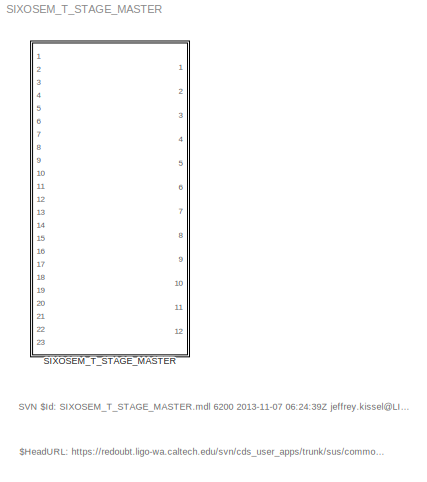
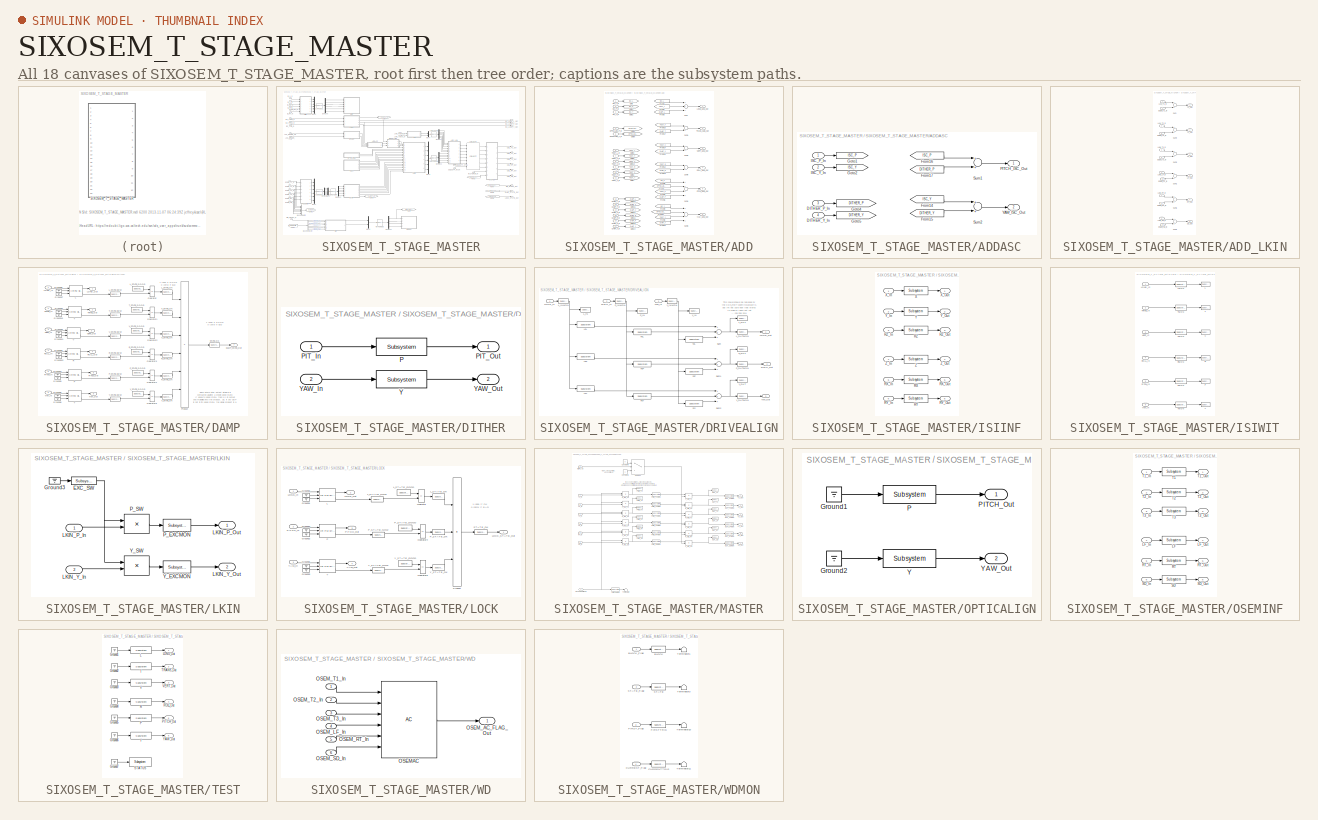
[diagram: thumbnail index - all 18 canvases of the model, root first then tree order]
MODEL SIXOSEM_T_STAGE_MASTER
KIND library
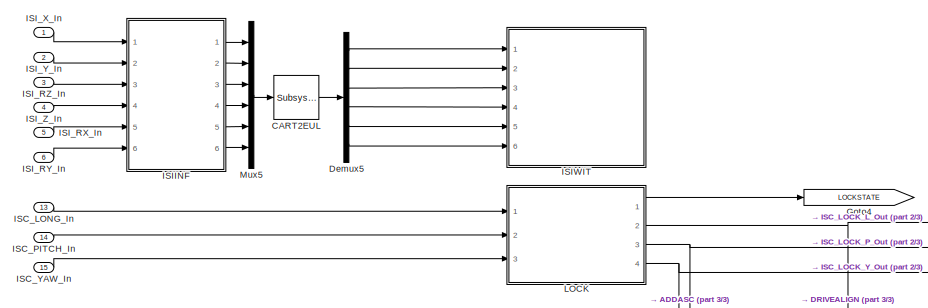
[diagram: SIXOSEM_T_STAGE_MASTER - part 1/3, top left region]
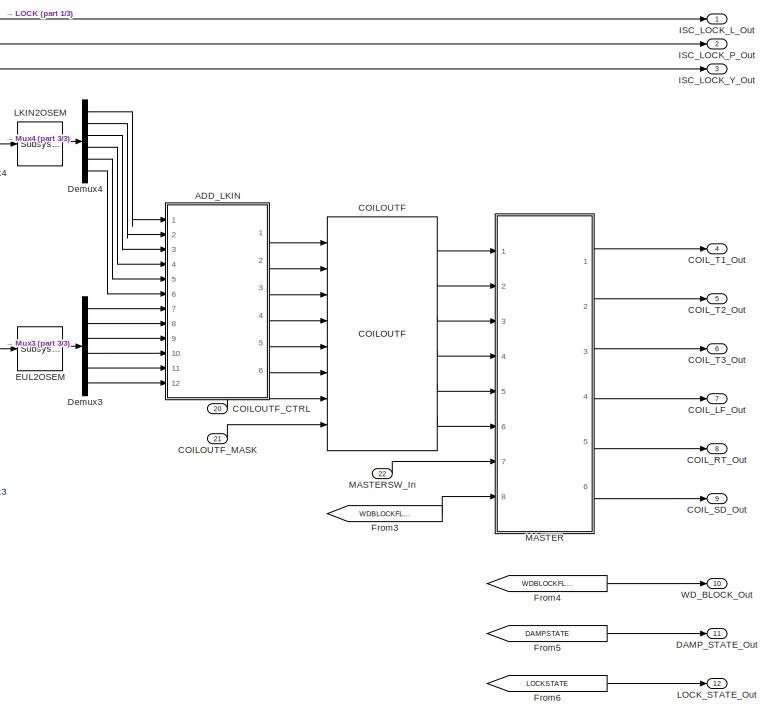
[diagram: SIXOSEM_T_STAGE_MASTER - part 2/3, middle right region]
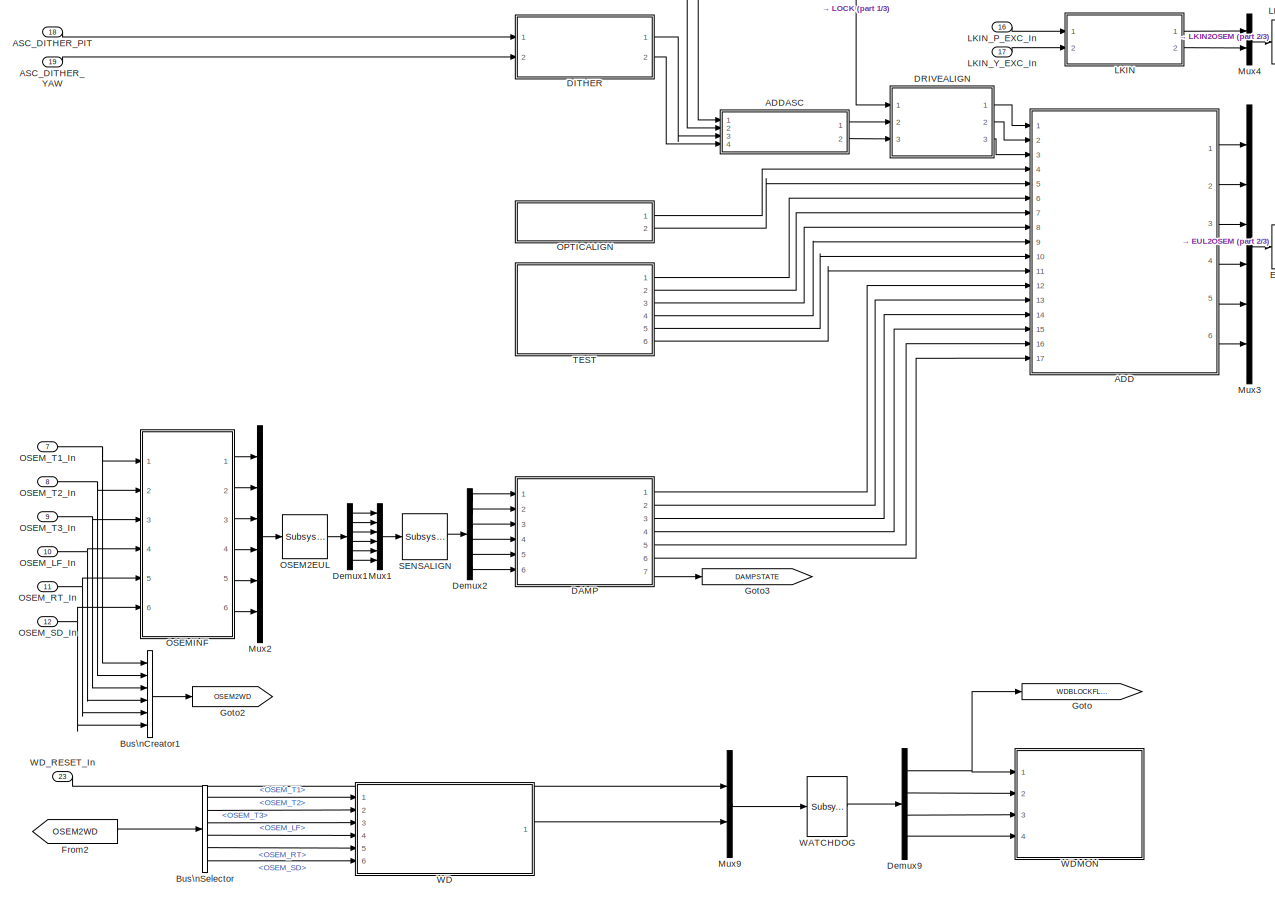
[diagram: SIXOSEM_T_STAGE_MASTER - part 3/3, left side, full height]
BLOCK [SubSystem] SIXOSEM_T_STAGE_MASTER
  Description = SIXOSEMSTAGE_FACE_MASTER
  FunctionWithSeparateData = off
  MaskHideContents = off
  MinAlgLoopOccurrences = off
  Opaque = off
  Ports = [23, 12]
  PropExecContextOutsideSubsystem = off
  RTWSystemCode = Auto
  RequestExecContextInheritance = off
  SID = 1
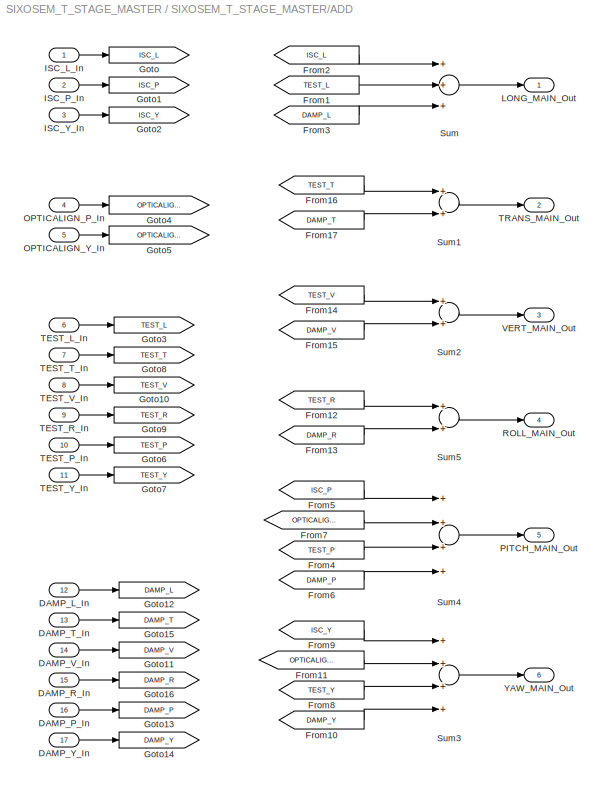
BLOCK [SubSystem] SIXOSEM_T_STAGE_MASTER/ADD
  FunctionWithSeparateData = off
  MaskHideContents = off
  MinAlgLoopOccurrences = off
  Opaque = off
  Ports = [17, 6]
  PropExecContextOutsideSubsystem = off
  RTWSystemCode = Auto
  RequestExecContextInheritance = off
  SID = 12
BLOCK [Inport] SIXOSEM_T_STAGE_MASTER/ADD/DAMP_L_In
  IconDisplay = Port number
  Port = 12
  SID = 22
BLOCK [Inport] SIXOSEM_T_STAGE_MASTER/ADD/DAMP_P_In
  IconDisplay = Port number
  Port = 16
  SID = 26
BLOCK [Inport] SIXOSEM_T_STAGE_MASTER/ADD/DAMP_R_In
  IconDisplay = Port number
  Port = 15
  SID = 25
BLOCK [Inport] SIXOSEM_T_STAGE_MASTER/ADD/DAMP_T_In
  IconDisplay = Port number
  Port = 13
  SID = 23
BLOCK [Inport] SIXOSEM_T_STAGE_MASTER/ADD/DAMP_V_In
  IconDisplay = Port number
  Port = 14
  SID = 24
BLOCK [Inport] SIXOSEM_T_STAGE_MASTER/ADD/DAMP_Y_In
  IconDisplay = Port number
  Port = 17
  SID = 27
BLOCK [From] SIXOSEM_T_STAGE_MASTER/ADD/From1
  CloseFcn = tagdialog Close
  GotoTag = TEST_L
  SID = 437
BLOCK [From] SIXOSEM_T_STAGE_MASTER/ADD/From10
  CloseFcn = tagdialog Close
  GotoTag = DAMP_Y
  SID = 463
BLOCK [From] SIXOSEM_T_STAGE_MASTER/ADD/From11
  CloseFcn = tagdialog Close
  GotoTag = OPTICALIGN_Y
  SID = 702
BLOCK [From] SIXOSEM_T_STAGE_MASTER/ADD/From12
  CloseFcn = tagdialog Close
  GotoTag = TEST_R
  SID = 465
BLOCK [From] SIXOSEM_T_STAGE_MASTER/ADD/From13
  CloseFcn = tagdialog Close
  GotoTag = DAMP_R
  SID = 466
BLOCK [From] SIXOSEM_T_STAGE_MASTER/ADD/From14
  CloseFcn = tagdialog Close
  GotoTag = TEST_V
  SID = 467
BLOCK [From] SIXOSEM_T_STAGE_MASTER/ADD/From15
  CloseFcn = tagdialog Close
  GotoTag = DAMP_V
  SID = 468
BLOCK [From] SIXOSEM_T_STAGE_MASTER/ADD/From16
  CloseFcn = tagdialog Close
  GotoTag = TEST_T
  SID = 469
BLOCK [From] SIXOSEM_T_STAGE_MASTER/ADD/From17
  CloseFcn = tagdialog Close
  GotoTag = DAMP_T
  SID = 470
BLOCK [From] SIXOSEM_T_STAGE_MASTER/ADD/From2
  CloseFcn = tagdialog Close
  GotoTag = ISC_L
  SID = 436
BLOCK [From] SIXOSEM_T_STAGE_MASTER/ADD/From3
  CloseFcn = tagdialog Close
  GotoTag = DAMP_L
  SID = 438
BLOCK [From] SIXOSEM_T_STAGE_MASTER/ADD/From4
  CloseFcn = tagdialog Close
  GotoTag = TEST_P
  SID = 457
BLOCK [From] SIXOSEM_T_STAGE_MASTER/ADD/From5
  CloseFcn = tagdialog Close
  GotoTag = ISC_P
  SID = 458
BLOCK [From] SIXOSEM_T_STAGE_MASTER/ADD/From6
  CloseFcn = tagdialog Close
  GotoTag = DAMP_P
  SID = 459
BLOCK [From] SIXOSEM_T_STAGE_MASTER/ADD/From7
  CloseFcn = tagdialog Close
  GotoTag = OPTICALIGN_P
  SID = 701
BLOCK [From] SIXOSEM_T_STAGE_MASTER/ADD/From8
  CloseFcn = tagdialog Close
  GotoTag = TEST_Y
  SID = 461
BLOCK [From] SIXOSEM_T_STAGE_MASTER/ADD/From9
  CloseFcn = tagdialog Close
  GotoTag = ISC_Y
  SID = 462
BLOCK [Goto] SIXOSEM_T_STAGE_MASTER/ADD/Goto
  GotoTag = ISC_L
  SID = 416
BLOCK [Goto] SIXOSEM_T_STAGE_MASTER/ADD/Goto1
  GotoTag = ISC_P
  SID = 419
BLOCK [Goto] SIXOSEM_T_STAGE_MASTER/ADD/Goto10
  GotoTag = TEST_V
  SID = 429
BLOCK [Goto] SIXOSEM_T_STAGE_MASTER/ADD/Goto11
  GotoTag = DAMP_V
  SID = 430
BLOCK [Goto] SIXOSEM_T_STAGE_MASTER/ADD/Goto12
  GotoTag = DAMP_L
  SID = 431
BLOCK [Goto] SIXOSEM_T_STAGE_MASTER/ADD/Goto13
  GotoTag = DAMP_P
  SID = 432
BLOCK [Goto] SIXOSEM_T_STAGE_MASTER/ADD/Goto14
  GotoTag = DAMP_Y
  SID = 433
BLOCK [Goto] SIXOSEM_T_STAGE_MASTER/ADD/Goto15
  GotoTag = DAMP_T
  SID = 434
BLOCK [Goto] SIXOSEM_T_STAGE_MASTER/ADD/Goto16
  GotoTag = DAMP_R
  SID = 435
BLOCK [Goto] SIXOSEM_T_STAGE_MASTER/ADD/Goto2
  GotoTag = ISC_Y
  SID = 420
BLOCK [Goto] SIXOSEM_T_STAGE_MASTER/ADD/Goto3
  GotoTag = TEST_L
  SID = 424
BLOCK [Goto] SIXOSEM_T_STAGE_MASTER/ADD/Goto4
  GotoTag = OPTICALIGN_P
  SID = 422
BLOCK [Goto] SIXOSEM_T_STAGE_MASTER/ADD/Goto5
  GotoTag = OPTICALIGN_Y
  SID = 423
BLOCK [Goto] SIXOSEM_T_STAGE_MASTER/ADD/Goto6
  GotoTag = TEST_P
  SID = 425
BLOCK [Goto] SIXOSEM_T_STAGE_MASTER/ADD/Goto7
  GotoTag = TEST_Y
  SID = 426
BLOCK [Goto] SIXOSEM_T_STAGE_MASTER/ADD/Goto8
  GotoTag = TEST_T
  SID = 427
BLOCK [Goto] SIXOSEM_T_STAGE_MASTER/ADD/Goto9
  GotoTag = TEST_R
  SID = 428
BLOCK [Inport] SIXOSEM_T_STAGE_MASTER/ADD/ISC_L_In
  IconDisplay = Port number
  SID = 13
BLOCK [Inport] SIXOSEM_T_STAGE_MASTER/ADD/ISC_P_In
  IconDisplay = Port number
  Port = 2
  SID = 14
BLOCK [Inport] SIXOSEM_T_STAGE_MASTER/ADD/ISC_Y_In
  IconDisplay = Port number
  Port = 3
  SID = 15
BLOCK [Outport] SIXOSEM_T_STAGE_MASTER/ADD/LONG_MAIN_Out
  IconDisplay = Port number
  SID = 34
BLOCK [Inport] SIXOSEM_T_STAGE_MASTER/ADD/OPTICALIGN_P_In
  IconDisplay = Port number
  Port = 4
  SID = 366
BLOCK [Inport] SIXOSEM_T_STAGE_MASTER/ADD/OPTICALIGN_Y_In
  IconDisplay = Port number
  Port = 5
  SID = 367
BLOCK [Outport] SIXOSEM_T_STAGE_MASTER/ADD/PITCH_MAIN_Out
  IconDisplay = Port number
  Port = 5
  SID = 38
BLOCK [Outport] SIXOSEM_T_STAGE_MASTER/ADD/ROLL_MAIN_Out
  IconDisplay = Port number
  Port = 4
  SID = 37
BLOCK [Sum] SIXOSEM_T_STAGE_MASTER/ADD/Sum
  InputSameDT = off
  Inputs = +++
  OutDataTypeStr = Inherit: Inherit via internal rule
  Ports = [3, 1]
  SID = 28
  SaturateOnIntegerOverflow = off
BLOCK [Sum] SIXOSEM_T_STAGE_MASTER/ADD/Sum1
  InputSameDT = off
  OutDataTypeStr = Inherit: Inherit via internal rule
  Ports = [2, 1]
  SID = 401
  SaturateOnIntegerOverflow = off
BLOCK [Sum] SIXOSEM_T_STAGE_MASTER/ADD/Sum2
  InputSameDT = off
  OutDataTypeStr = Inherit: Inherit via internal rule
  Ports = [2, 1]
  SID = 402
  SaturateOnIntegerOverflow = off
BLOCK [Sum] SIXOSEM_T_STAGE_MASTER/ADD/Sum3
  InputSameDT = off
  Inputs = ++++
  OutDataTypeStr = Inherit: Inherit via internal rule
  Ports = [4, 1]
  SID = 31
  SaturateOnIntegerOverflow = off
BLOCK [Sum] SIXOSEM_T_STAGE_MASTER/ADD/Sum4
  InputSameDT = off
  Inputs = ++++
  OutDataTypeStr = Inherit: Inherit via internal rule
  Ports = [4, 1]
  SID = 32
  SaturateOnIntegerOverflow = off
BLOCK [Sum] SIXOSEM_T_STAGE_MASTER/ADD/Sum5
  InputSameDT = off
  OutDataTypeStr = Inherit: Inherit via internal rule
  Ports = [2, 1]
  SID = 403
  SaturateOnIntegerOverflow = off
BLOCK [Inport] SIXOSEM_T_STAGE_MASTER/ADD/TEST_L_In
  IconDisplay = Port number
  Port = 6
  SID = 16
BLOCK [Inport] SIXOSEM_T_STAGE_MASTER/ADD/TEST_P_In
  IconDisplay = Port number
  Port = 10
  SID = 20
BLOCK [Inport] SIXOSEM_T_STAGE_MASTER/ADD/TEST_R_In
  IconDisplay = Port number
  Port = 9
  SID = 19
BLOCK [Inport] SIXOSEM_T_STAGE_MASTER/ADD/TEST_T_In
  IconDisplay = Port number
  Port = 7
  SID = 17
BLOCK [Inport] SIXOSEM_T_STAGE_MASTER/ADD/TEST_V_In
  IconDisplay = Port number
  Port = 8
  SID = 18
BLOCK [Inport] SIXOSEM_T_STAGE_MASTER/ADD/TEST_Y_In
  IconDisplay = Port number
  Port = 11
  SID = 21
BLOCK [Outport] SIXOSEM_T_STAGE_MASTER/ADD/TRANS_MAIN_Out
  IconDisplay = Port number
  Port = 2
  SID = 35
BLOCK [Outport] SIXOSEM_T_STAGE_MASTER/ADD/VERT_MAIN_Out
  IconDisplay = Port number
  Port = 3
  SID = 36
BLOCK [Outport] SIXOSEM_T_STAGE_MASTER/ADD/YAW_MAIN_Out
  IconDisplay = Port number
  Port = 6
  SID = 39
BLOCK [SubSystem] SIXOSEM_T_STAGE_MASTER/ADDASC
  FunctionWithSeparateData = off
  MaskHideContents = off
  MinAlgLoopOccurrences = off
  Opaque = off
  Ports = [4, 2]
  PropExecContextOutsideSubsystem = off
  RTWSystemCode = Auto
  RequestExecContextInheritance = off
  SID = 853
BLOCK [Inport] SIXOSEM_T_STAGE_MASTER/ADDASC/DITHER_P_In
  IconDisplay = Port number
  Port = 3
  SID = 857
BLOCK [Inport] SIXOSEM_T_STAGE_MASTER/ADDASC/DITHER_Y_In
  IconDisplay = Port number
  Port = 4
  SID = 858
BLOCK [From] SIXOSEM_T_STAGE_MASTER/ADDASC/From14
  CloseFcn = tagdialog Close
  GotoTag = ISC_Y
  SID = 876
BLOCK [From] SIXOSEM_T_STAGE_MASTER/ADDASC/From15
  CloseFcn = tagdialog Close
  GotoTag = DITHER_Y
  SID = 877
BLOCK [From] SIXOSEM_T_STAGE_MASTER/ADDASC/From16
  CloseFcn = tagdialog Close
  GotoTag = ISC_P
  SID = 878
BLOCK [From] SIXOSEM_T_STAGE_MASTER/ADDASC/From17
  CloseFcn = tagdialog Close
  GotoTag = DITHER_P
  SID = 879
BLOCK [Goto] SIXOSEM_T_STAGE_MASTER/ADDASC/Goto1
  GotoTag = ISC_P
  SID = 889
BLOCK [Goto] SIXOSEM_T_STAGE_MASTER/ADDASC/Goto2
  GotoTag = ISC_Y
  SID = 897
BLOCK [Goto] SIXOSEM_T_STAGE_MASTER/ADDASC/Goto4
  GotoTag = DITHER_P
  SID = 899
BLOCK [Goto] SIXOSEM_T_STAGE_MASTER/ADDASC/Goto5
  GotoTag = DITHER_Y
  SID = 900
BLOCK [Inport] SIXOSEM_T_STAGE_MASTER/ADDASC/ISC_P_In
  IconDisplay = Port number
  SID = 855
BLOCK [Inport] SIXOSEM_T_STAGE_MASTER/ADDASC/ISC_Y_In
  IconDisplay = Port number
  Port = 2
  SID = 856
BLOCK [Outport] SIXOSEM_T_STAGE_MASTER/ADDASC/PITCH_ISC_Out
  IconDisplay = Port number
  SID = 912
BLOCK [Sum] SIXOSEM_T_STAGE_MASTER/ADDASC/Sum1
  InputSameDT = off
  OutDataTypeStr = Inherit: Inherit via internal rule
  Ports = [2, 1]
  SID = 906
  SaturateOnIntegerOverflow = off
BLOCK [Sum] SIXOSEM_T_STAGE_MASTER/ADDASC/Sum2
  InputSameDT = off
  OutDataTypeStr = Inherit: Inherit via internal rule
  Ports = [2, 1]
  SID = 907
  SaturateOnIntegerOverflow = off
BLOCK [Outport] SIXOSEM_T_STAGE_MASTER/ADDASC/YAW_ISC_Out
  IconDisplay = Port number
  Port = 2
  SID = 913
BLOCK [SubSystem] SIXOSEM_T_STAGE_MASTER/ADD_LKIN
  FunctionWithSeparateData = off
  MaskHideContents = off
  MinAlgLoopOccurrences = off
  Opaque = off
  Ports = [12, 6]
  PropExecContextOutsideSubsystem = off
  RTWSystemCode = Auto
  RequestExecContextInheritance = off
  SID = 775
BLOCK [Outport] SIXOSEM_T_STAGE_MASTER/ADD_LKIN/LF_Out
  IconDisplay = Port number
  Port = 4
  SID = 791
BLOCK [Inport] SIXOSEM_T_STAGE_MASTER/ADD_LKIN/LKIN_LF_In
  IconDisplay = Port number
  Port = 4
  SID = 779
BLOCK [Inport] SIXOSEM_T_STAGE_MASTER/ADD_LKIN/LKIN_RT_In
  IconDisplay = Port number
  Port = 5
  SID = 792
BLOCK [Inport] SIXOSEM_T_STAGE_MASTER/ADD_LKIN/LKIN_SD_In
  IconDisplay = Port number
  Port = 6
  SID = 793
BLOCK [Inport] SIXOSEM_T_STAGE_MASTER/ADD_LKIN/LKIN_T3_In
  IconDisplay = Port number
  Port = 3
  SID = 778
BLOCK [Inport] SIXOSEM_T_STAGE_MASTER/ADD_LKIN/LKN_T1_In
  IconDisplay = Port number
  SID = 776
BLOCK [Inport] SIXOSEM_T_STAGE_MASTER/ADD_LKIN/LKN_T2_In
  IconDisplay = Port number
  Port = 2
  SID = 777
BLOCK [Inport] SIXOSEM_T_STAGE_MASTER/ADD_LKIN/OSEM_LF_In
  IconDisplay = Port number
  Port = 10
  SID = 783
BLOCK [Inport] SIXOSEM_T_STAGE_MASTER/ADD_LKIN/OSEM_RT_In
  IconDisplay = Port number
  Port = 11
  SID = 794
BLOCK [Inport] SIXOSEM_T_STAGE_MASTER/ADD_LKIN/OSEM_SD_In
  IconDisplay = Port number
  Port = 12
  SID = 795
BLOCK [Inport] SIXOSEM_T_STAGE_MASTER/ADD_LKIN/OSEM_T1_In
  IconDisplay = Port number
  Port = 7
  SID = 780
BLOCK [Inport] SIXOSEM_T_STAGE_MASTER/ADD_LKIN/OSEM_T2_In
  IconDisplay = Port number
  Port = 8
  SID = 781
BLOCK [Inport] SIXOSEM_T_STAGE_MASTER/ADD_LKIN/OSEM_T3_In
  IconDisplay = Port number
  Port = 9
  SID = 782
BLOCK [Outport] SIXOSEM_T_STAGE_MASTER/ADD_LKIN/RT_Out
  IconDisplay = Port number
  Port = 5
  SID = 798
BLOCK [Outport] SIXOSEM_T_STAGE_MASTER/ADD_LKIN/SD_Out
  IconDisplay = Port number
  Port = 6
  SID = 799
BLOCK [Sum] SIXOSEM_T_STAGE_MASTER/ADD_LKIN/Sum
  InputSameDT = off
  OutDataTypeStr = Inherit: Inherit via internal rule
  Ports = [2, 1]
  SID = 784
  SaturateOnIntegerOverflow = off
BLOCK [Sum] SIXOSEM_T_STAGE_MASTER/ADD_LKIN/Sum1
  InputSameDT = off
  OutDataTypeStr = Inherit: Inherit via internal rule
  Ports = [2, 1]
  SID = 785
  SaturateOnIntegerOverflow = off
BLOCK [Sum] SIXOSEM_T_STAGE_MASTER/ADD_LKIN/Sum2
  InputSameDT = off
  OutDataTypeStr = Inherit: Inherit via internal rule
  Ports = [2, 1]
  SID = 796
  SaturateOnIntegerOverflow = off
BLOCK [Sum] SIXOSEM_T_STAGE_MASTER/ADD_LKIN/Sum3
  InputSameDT = off
  OutDataTypeStr = Inherit: Inherit via internal rule
  Ports = [2, 1]
  SID = 786
  SaturateOnIntegerOverflow = off
BLOCK [Sum] SIXOSEM_T_STAGE_MASTER/ADD_LKIN/Sum4
  InputSameDT = off
  OutDataTypeStr = Inherit: Inherit via internal rule
  Ports = [2, 1]
  SID = 787
  SaturateOnIntegerOverflow = off
BLOCK [Sum] SIXOSEM_T_STAGE_MASTER/ADD_LKIN/Sum5
  InputSameDT = off
  OutDataTypeStr = Inherit: Inherit via internal rule
  Ports = [2, 1]
  SID = 797
  SaturateOnIntegerOverflow = off
BLOCK [Outport] SIXOSEM_T_STAGE_MASTER/ADD_LKIN/T1_Out
  IconDisplay = Port number
  SID = 788
BLOCK [Outport] SIXOSEM_T_STAGE_MASTER/ADD_LKIN/T2_Out
  IconDisplay = Port number
  Port = 2
  SID = 789
BLOCK [Outport] SIXOSEM_T_STAGE_MASTER/ADD_LKIN/T3_Out
  IconDisplay = Port number
  Port = 3
  SID = 790
BLOCK [Inport] SIXOSEM_T_STAGE_MASTER/ASC_DITHER_PIT
  IconDisplay = Port number
  Port = 18
  SID = 844
BLOCK [Inport] SIXOSEM_T_STAGE_MASTER/ASC_DITHER_YAW
  IconDisplay = Port number
  Port = 19
  SID = 845
BLOCK [BusCreator] SIXOSEM_T_STAGE_MASTER/Bus\nCreator1
  DisplayOption = bar
  Inputs = 'OSEM_T1','OSEM_T2','OSEM_T3','OSEM_LF','OSEM_RT','OSEM_SD'
  Ports = [6, 1]
  SID = 40
BLOCK [BusSelector] SIXOSEM_T_STAGE_MASTER/Bus\nSelector
  OutputSignals = OSEM_T1,OSEM_T2,OSEM_T3,OSEM_LF,OSEM_RT,OSEM_SD
  Ports = [1, 6]
  SID = 42
BLOCK [Reference] SIXOSEM_T_STAGE_MASTER/CART2EUL  REF=cdsMuxMatrix/Subsystem
  AttributesFormatString = %<Tag>
  Description = Any size matrix. Inputs and outputs must be connected using Mux and Demux parts.
  Ports = [1, 1]
  SID = 546
  SourceBlock = cdsMuxMatrix/Subsystem
  SourceType = SubSystem
  Tag = cdsMuxMatrix
BLOCK [Reference] SIXOSEM_T_STAGE_MASTER/COILOUTF  REF=SIXOSEM_T_COILOUTF_MASTER/COILOUTF
  Ports = [8, 6]
  SID = 829
  SourceBlock = SIXOSEM_T_COILOUTF_MASTER/COILOUTF
  SourceType = SubSystem
BLOCK [Inport] SIXOSEM_T_STAGE_MASTER/COILOUTF_CTRL
  IconDisplay = Port number
  Port = 20
  SID = 364
BLOCK [Inport] SIXOSEM_T_STAGE_MASTER/COILOUTF_MASK
  IconDisplay = Port number
  Port = 21
  SID = 365
BLOCK [Outport] SIXOSEM_T_STAGE_MASTER/COIL_LF_Out
  IconDisplay = Port number
  Port = 7
  SID = 352
BLOCK [Outport] SIXOSEM_T_STAGE_MASTER/COIL_RT_Out
  IconDisplay = Port number
  Port = 8
  SID = 353
BLOCK [Outport] SIXOSEM_T_STAGE_MASTER/COIL_SD_Out
  IconDisplay = Port number
  Port = 9
  SID = 354
BLOCK [Outport] SIXOSEM_T_STAGE_MASTER/COIL_T1_Out
  IconDisplay = Port number
  Port = 4
  SID = 349
BLOCK [Outport] SIXOSEM_T_STAGE_MASTER/COIL_T2_Out
  IconDisplay = Port number
  Port = 5
  SID = 350
BLOCK [Outport] SIXOSEM_T_STAGE_MASTER/COIL_T3_Out
  IconDisplay = Port number
  Port = 6
  SID = 351
BLOCK [SubSystem] SIXOSEM_T_STAGE_MASTER/DAMP
  FunctionWithSeparateData = off
  MaskHideContents = off
  MinAlgLoopOccurrences = off
  Opaque = off
  Ports = [6, 7]
  PropExecContextOutsideSubsystem = off
  RTWSystemCode = Auto
  RequestExecContextInheritance = off
  SID = 45
BLOCK [Outport] SIXOSEM_T_STAGE_MASTER/DAMP/DAMP_STATE_Out
  IconDisplay = Port number
  Port = 7
  SID = 695
BLOCK [Ground] SIXOSEM_T_STAGE_MASTER/DAMP/Ground1
  SID = 652
BLOCK [Ground] SIXOSEM_T_STAGE_MASTER/DAMP/Ground10
  SID = 923
BLOCK [Ground] SIXOSEM_T_STAGE_MASTER/DAMP/Ground11
  SID = 924
BLOCK [Ground] SIXOSEM_T_STAGE_MASTER/DAMP/Ground12
  SID = 925
BLOCK [Ground] SIXOSEM_T_STAGE_MASTER/DAMP/Ground2
  SID = 653
BLOCK [Ground] SIXOSEM_T_STAGE_MASTER/DAMP/Ground3
  SID = 654
BLOCK [Ground] SIXOSEM_T_STAGE_MASTER/DAMP/Ground4
  SID = 655
BLOCK [Ground] SIXOSEM_T_STAGE_MASTER/DAMP/Ground5
  SID = 656
BLOCK [Ground] SIXOSEM_T_STAGE_MASTER/DAMP/Ground6
  SID = 657
BLOCK [Ground] SIXOSEM_T_STAGE_MASTER/DAMP/Ground7
  SID = 920
BLOCK [Ground] SIXOSEM_T_STAGE_MASTER/DAMP/Ground8
  SID = 921
BLOCK [Ground] SIXOSEM_T_STAGE_MASTER/DAMP/Ground9
  SID = 922
BLOCK [Reference] SIXOSEM_T_STAGE_MASTER/DAMP/L  REF=cdsFiltCtrl/IIR FM with control
  AttributesFormatString = %<Tag>
  Description = cdsFiltCntrl is the standard IIR filter module (exactly the same as cdsFilt) but with added control data output 'Ctrl'. Filter module digital signal output appears on the first output, which is called 'Val'. 'Ctrl' output has a bit pattern encoding the state of filter's on/off switches (FM1 through FM10). The bit values are:\n                                                                        ...<+4621ch>  <repeated x9 — deduplicated; at blocks: L, P, R, T, V, Y>
  Ports = [3, 2]
  SID = 677
  SourceBlock = cdsFiltCtrl/IIR FM with control
  SourceType = SubSystem
  Tag = cdsFiltCtrl
BLOCK [Inport] SIXOSEM_T_STAGE_MASTER/DAMP/LONG_In
  IconDisplay = Port number
  SID = 646
BLOCK [Outport] SIXOSEM_T_STAGE_MASTER/DAMP/LONG_Out
  IconDisplay = Port number
  SID = 689
BLOCK [Reference] SIXOSEM_T_STAGE_MASTER/DAMP/L_STATE_GOOD  REF=cdsEpicsIn/Subsystem
  AttributesFormatString = %<Tag>
  Description = Purpose:                                                                              \nCreate an EPICS input channel connection to the FE realtime controls.                 \n                                                                                      \nOperation:                                                                            \nOutputs value from an EPICS ai record. Value is ...<+266ch>  <repeated x9 — deduplicated; at blocks: L_STATE_GOOD, P_STATE_GOOD, R_STATE_GOOD, T_STATE_GOOD, V_STATE_GOOD, Y_STATE_GOOD>
  Ports = [0, 1]
  SID = 678
  SourceBlock = cdsEpicsIn/Subsystem
  SourceType = SubSystem
  Tag = cdsEpicsIn
BLOCK [Reference] SIXOSEM_T_STAGE_MASTER/DAMP/L_STATE_NOW  REF=cdsEpicsOut/Subsystem
  AttributesFormatString = %<Tag>
  Description = Purpose:                                          \nOutput a FE signal to an EPICS channel.           \n                                                  \nOperation:                                        \nTakes input value and passes it to EPICS record.  \n                                                  \nUsage:                                            \nName the part with the desired EPICS...<+14ch>  <repeated x47 — deduplicated; at blocks: L_STATE_NOW, L_STATE_OK, P_STATE_NOW, P_STATE_OK, R_STATE_NOW, R_STATE_OK, STATE_OK, T_STATE_NOW, T_STATE_OK, V_STATE_NOW, V_STATE_OK, Y_STATE_NOW, Y_STATE_OK, L_INMON, L_OUTMON, P_INMON, +24 more>
  Ports = [1, 1]
  SID = 679
  SourceBlock = cdsEpicsOut/Subsystem
  SourceType = SubSystem
  Tag = cdsEpicsOutput
BLOCK [Reference] SIXOSEM_T_STAGE_MASTER/DAMP/L_STATE_OK  REF=cdsEpicsOut/Subsystem
  AttributesFormatString = %<Tag>
  Ports = [1, 1]
  SID = 817
  SourceBlock = cdsEpicsOut/Subsystem
  SourceType = SubSystem
  Tag = cdsEpicsOutput
BLOCK [RelationalOperator] SIXOSEM_T_STAGE_MASTER/DAMP/Operator
  InputSameDT = off
  Operator = ==
  OutDataTypeStr = boolean
  Ports = [2, 1]
  SID = 658
BLOCK [RelationalOperator] SIXOSEM_T_STAGE_MASTER/DAMP/Operator1
  InputSameDT = off
  Operator = ==
  OutDataTypeStr = boolean
  Ports = [2, 1]
  SID = 659
BLOCK [RelationalOperator] SIXOSEM_T_STAGE_MASTER/DAMP/Operator2
  InputSameDT = off
  Operator = ==
  OutDataTypeStr = boolean
  Ports = [2, 1]
  SID = 660
BLOCK [RelationalOperator] SIXOSEM_T_STAGE_MASTER/DAMP/Operator3
  InputSameDT = off
  Operator = ==
  OutDataTypeStr = boolean
  Ports = [2, 1]
  SID = 661
BLOCK [RelationalOperator] SIXOSEM_T_STAGE_MASTER/DAMP/Operator4
  InputSameDT = off
  Operator = ==
  OutDataTypeStr = boolean
  Ports = [2, 1]
  SID = 662
BLOCK [RelationalOperator] SIXOSEM_T_STAGE_MASTER/DAMP/Operator5
  InputSameDT = off
  Operator = ==
  OutDataTypeStr = boolean
  Ports = [2, 1]
  SID = 663
BLOCK [Reference] SIXOSEM_T_STAGE_MASTER/DAMP/P  REF=cdsFiltCtrl/IIR FM with control
  AttributesFormatString = %<Tag>
  Ports = [3, 2]
  SID = 665
  SourceBlock = cdsFiltCtrl/IIR FM with control
  SourceType = SubSystem
  Tag = cdsFiltCtrl
BLOCK [Inport] SIXOSEM_T_STAGE_MASTER/DAMP/PITCH_In
  IconDisplay = Port number
  Port = 5
  SID = 650
BLOCK [Outport] SIXOSEM_T_STAGE_MASTER/DAMP/PITCH_Out
  IconDisplay = Port number
  Port = 5
  SID = 693
BLOCK [Reference] SIXOSEM_T_STAGE_MASTER/DAMP/P_STATE_GOOD  REF=cdsEpicsIn/Subsystem
  AttributesFormatString = %<Tag>
  Ports = [0, 1]
  SID = 666
  SourceBlock = cdsEpicsIn/Subsystem
  SourceType = SubSystem
  Tag = cdsEpicsIn
BLOCK [Reference] SIXOSEM_T_STAGE_MASTER/DAMP/P_STATE_NOW  REF=cdsEpicsOut/Subsystem
  AttributesFormatString = %<Tag>
  Ports = [1, 1]
  SID = 667
  SourceBlock = cdsEpicsOut/Subsystem
  SourceType = SubSystem
  Tag = cdsEpicsOutput
BLOCK [Reference] SIXOSEM_T_STAGE_MASTER/DAMP/P_STATE_OK  REF=cdsEpicsOut/Subsystem
  AttributesFormatString = %<Tag>
  Ports = [1, 1]
  SID = 821
  SourceBlock = cdsEpicsOut/Subsystem
  SourceType = SubSystem
  Tag = cdsEpicsOutput
BLOCK [Product] SIXOSEM_T_STAGE_MASTER/DAMP/Product
  InputSameDT = off
  Inputs = 6
  OutDataTypeStr = Inherit: Inherit via internal rule
  Ports = [6, 1]
  SID = 664
  SaturateOnIntegerOverflow = off
BLOCK [Reference] SIXOSEM_T_STAGE_MASTER/DAMP/R  REF=cdsFiltCtrl/IIR FM with control
  AttributesFormatString = %<Tag>
  Ports = [3, 2]
  SID = 685
  SourceBlock = cdsFiltCtrl/IIR FM with control
  SourceType = SubSystem
  Tag = cdsFiltCtrl
BLOCK [Inport] SIXOSEM_T_STAGE_MASTER/DAMP/ROLL_In
  IconDisplay = Port number
  Port = 4
  SID = 649
BLOCK [Outport] SIXOSEM_T_STAGE_MASTER/DAMP/ROLL_Out
  IconDisplay = Port number
  Port = 4
  SID = 692
BLOCK [Reference] SIXOSEM_T_STAGE_MASTER/DAMP/R_STATE_GOOD  REF=cdsEpicsIn/Subsystem
  AttributesFormatString = %<Tag>
  Ports = [0, 1]
  SID = 686
  SourceBlock = cdsEpicsIn/Subsystem
  SourceType = SubSystem
  Tag = cdsEpicsIn
BLOCK [Reference] SIXOSEM_T_STAGE_MASTER/DAMP/R_STATE_NOW  REF=cdsEpicsOut/Subsystem
  AttributesFormatString = %<Tag>
  Ports = [1, 1]
  SID = 687
  SourceBlock = cdsEpicsOut/Subsystem
  SourceType = SubSystem
  Tag = cdsEpicsOutput
BLOCK [Reference] SIXOSEM_T_STAGE_MASTER/DAMP/R_STATE_OK  REF=cdsEpicsOut/Subsystem
  AttributesFormatString = %<Tag>
  Ports = [1, 1]
  SID = 820
  SourceBlock = cdsEpicsOut/Subsystem
  SourceType = SubSystem
  Tag = cdsEpicsOutput
BLOCK [Reference] SIXOSEM_T_STAGE_MASTER/DAMP/STATE_OK  REF=cdsEpicsOut/Subsystem
  AttributesFormatString = %<Tag>
  Ports = [1, 1]
  SID = 696
  SourceBlock = cdsEpicsOut/Subsystem
  SourceType = SubSystem
  Tag = cdsEpicsOutput
BLOCK [Reference] SIXOSEM_T_STAGE_MASTER/DAMP/T  REF=cdsFiltCtrl/IIR FM with control
  AttributesFormatString = %<Tag>
  Ports = [3, 2]
  SID = 681
  SourceBlock = cdsFiltCtrl/IIR FM with control
  SourceType = SubSystem
  Tag = cdsFiltCtrl
BLOCK [Inport] SIXOSEM_T_STAGE_MASTER/DAMP/TRANS_In
  IconDisplay = Port number
  Port = 2
  SID = 647
BLOCK [Outport] SIXOSEM_T_STAGE_MASTER/DAMP/TRANS_Out
  IconDisplay = Port number
  Port = 2
  SID = 690
BLOCK [Reference] SIXOSEM_T_STAGE_MASTER/DAMP/T_STATE_GOOD  REF=cdsEpicsIn/Subsystem
  AttributesFormatString = %<Tag>
  Ports = [0, 1]
  SID = 682
  SourceBlock = cdsEpicsIn/Subsystem
  SourceType = SubSystem
  Tag = cdsEpicsIn
BLOCK [Reference] SIXOSEM_T_STAGE_MASTER/DAMP/T_STATE_NOW  REF=cdsEpicsOut/Subsystem
  AttributesFormatString = %<Tag>
  Ports = [1, 1]
  SID = 683
  SourceBlock = cdsEpicsOut/Subsystem
  SourceType = SubSystem
  Tag = cdsEpicsOutput
BLOCK [Reference] SIXOSEM_T_STAGE_MASTER/DAMP/T_STATE_OK  REF=cdsEpicsOut/Subsystem
  AttributesFormatString = %<Tag>
  Ports = [1, 1]
  SID = 818
  SourceBlock = cdsEpicsOut/Subsystem
  SourceType = SubSystem
  Tag = cdsEpicsOutput
BLOCK [Reference] SIXOSEM_T_STAGE_MASTER/DAMP/V  REF=cdsFiltCtrl/IIR FM with control
  AttributesFormatString = %<Tag>
  Ports = [3, 2]
  SID = 673
  SourceBlock = cdsFiltCtrl/IIR FM with control
  SourceType = SubSystem
  Tag = cdsFiltCtrl
BLOCK [Inport] SIXOSEM_T_STAGE_MASTER/DAMP/VERT_In
  IconDisplay = Port number
  Port = 3
  SID = 648
BLOCK [Outport] SIXOSEM_T_STAGE_MASTER/DAMP/VERT_Out
  IconDisplay = Port number
  Port = 3
  SID = 691
BLOCK [Reference] SIXOSEM_T_STAGE_MASTER/DAMP/V_STATE_GOOD  REF=cdsEpicsIn/Subsystem
  AttributesFormatString = %<Tag>
  Ports = [0, 1]
  SID = 674
  SourceBlock = cdsEpicsIn/Subsystem
  SourceType = SubSystem
  Tag = cdsEpicsIn
BLOCK [Reference] SIXOSEM_T_STAGE_MASTER/DAMP/V_STATE_NOW  REF=cdsEpicsOut/Subsystem
  AttributesFormatString = %<Tag>
  Ports = [1, 1]
  SID = 675
  SourceBlock = cdsEpicsOut/Subsystem
  SourceType = SubSystem
  Tag = cdsEpicsOutput
BLOCK [Reference] SIXOSEM_T_STAGE_MASTER/DAMP/V_STATE_OK  REF=cdsEpicsOut/Subsystem
  AttributesFormatString = %<Tag>
  Ports = [1, 1]
  SID = 819
  SourceBlock = cdsEpicsOut/Subsystem
  SourceType = SubSystem
  Tag = cdsEpicsOutput
BLOCK [Reference] SIXOSEM_T_STAGE_MASTER/DAMP/Y  REF=cdsFiltCtrl/IIR FM with control
  AttributesFormatString = %<Tag>
  Ports = [3, 2]
  SID = 669
  SourceBlock = cdsFiltCtrl/IIR FM with control
  SourceType = SubSystem
  Tag = cdsFiltCtrl
BLOCK [Inport] SIXOSEM_T_STAGE_MASTER/DAMP/YAW_In
  IconDisplay = Port number
  Port = 6
  SID = 651
BLOCK [Outport] SIXOSEM_T_STAGE_MASTER/DAMP/YAW_Out
  IconDisplay = Port number
  Port = 6
  SID = 694
BLOCK [Reference] SIXOSEM_T_STAGE_MASTER/DAMP/Y_STATE_GOOD  REF=cdsEpicsIn/Subsystem
  AttributesFormatString = %<Tag>
  Ports = [0, 1]
  SID = 670
  SourceBlock = cdsEpicsIn/Subsystem
  SourceType = SubSystem
  Tag = cdsEpicsIn
BLOCK [Reference] SIXOSEM_T_STAGE_MASTER/DAMP/Y_STATE_NOW  REF=cdsEpicsOut/Subsystem
  AttributesFormatString = %<Tag>
  Ports = [1, 1]
  SID = 671
  SourceBlock = cdsEpicsOut/Subsystem
  SourceType = SubSystem
  Tag = cdsEpicsOutput
BLOCK [Reference] SIXOSEM_T_STAGE_MASTER/DAMP/Y_STATE_OK  REF=cdsEpicsOut/Subsystem
  AttributesFormatString = %<Tag>
  Ports = [1, 1]
  SID = 822
  SourceBlock = cdsEpicsOut/Subsystem
  SourceType = SubSystem
  Tag = cdsEpicsOutput
BLOCK [Outport] SIXOSEM_T_STAGE_MASTER/DAMP_STATE_Out
  IconDisplay = Port number
  Port = 11
  SID = 697
BLOCK [SubSystem] SIXOSEM_T_STAGE_MASTER/DITHER
  FunctionWithSeparateData = off
  MaskHideContents = off
  MinAlgLoopOccurrences = off
  Opaque = off
  Ports = [2, 2]
  PropExecContextOutsideSubsystem = off
  RTWSystemCode = Auto
  RequestExecContextInheritance = off
  SID = 846
BLOCK [Reference] SIXOSEM_T_STAGE_MASTER/DITHER/P  REF=cdsFilt/Subsystem
  AttributesFormatString = %<Tag>
  Description = Purpose:                                                                                                                                                                                                                                  \nStandard CDS IIR filter module.                                                                                                                                     ...<+1302ch>  <repeated x31 — deduplicated; at blocks: P, Y, L2L, L2P, L2Y, P2L, P2P, P2Y, Y2L, Y2P, Y2Y, RX, RY, RZ, X, Z, +10 more>
  Ports = [1, 1]
  SID = 849
  SourceBlock = cdsFilt/Subsystem
  SourceType = SubSystem
  Tag = cdsFilt
BLOCK [Inport] SIXOSEM_T_STAGE_MASTER/DITHER/PIT_In
  IconDisplay = Port number
  SID = 847
BLOCK [Outport] SIXOSEM_T_STAGE_MASTER/DITHER/PIT_Out
  IconDisplay = Port number
  SID = 851
BLOCK [Reference] SIXOSEM_T_STAGE_MASTER/DITHER/Y  REF=cdsFilt/Subsystem
  AttributesFormatString = %<Tag>
  Ports = [1, 1]
  SID = 850
  SourceBlock = cdsFilt/Subsystem
  SourceType = SubSystem
  Tag = cdsFilt
BLOCK [Inport] SIXOSEM_T_STAGE_MASTER/DITHER/YAW_In
  IconDisplay = Port number
  Port = 2
  SID = 848
BLOCK [Outport] SIXOSEM_T_STAGE_MASTER/DITHER/YAW_Out
  IconDisplay = Port number
  Port = 2
  SID = 852
BLOCK [SubSystem] SIXOSEM_T_STAGE_MASTER/DRIVEALIGN
  FunctionWithSeparateData = off
  MaskHideContents = off
  MinAlgLoopOccurrences = off
  Opaque = off
  Ports = [3, 3]
  PropExecContextOutsideSubsystem = off
  RTWSystemCode = Auto
  RequestExecContextInheritance = off
  SID = 709
BLOCK [Reference] SIXOSEM_T_STAGE_MASTER/DRIVEALIGN/L2L  REF=cdsFilt/Subsystem
  AttributesFormatString = %<Tag>
  Ports = [1, 1]
  SID = 713
  SourceBlock = cdsFilt/Subsystem
  SourceType = SubSystem
  Tag = cdsFilt
BLOCK [Reference] SIXOSEM_T_STAGE_MASTER/DRIVEALIGN/L2P  REF=cdsFilt/Subsystem
  AttributesFormatString = %<Tag>
  Ports = [1, 1]
  SID = 714
  SourceBlock = cdsFilt/Subsystem
  SourceType = SubSystem
  Tag = cdsFilt
BLOCK [Reference] SIXOSEM_T_STAGE_MASTER/DRIVEALIGN/L2Y  REF=cdsFilt/Subsystem
  AttributesFormatString = %<Tag>
  Ports = [1, 1]
  SID = 715
  SourceBlock = cdsFilt/Subsystem
  SourceType = SubSystem
  Tag = cdsFilt
BLOCK [Inport] SIXOSEM_T_STAGE_MASTER/DRIVEALIGN/LONG_In
  IconDisplay = Port number
  SID = 710
BLOCK [Outport] SIXOSEM_T_STAGE_MASTER/DRIVEALIGN/LONG_Out
  IconDisplay = Port number
  SID = 737
BLOCK [Reference] SIXOSEM_T_STAGE_MASTER/DRIVEALIGN/L_IN  REF=cdsTP/Subsystem
  AttributesFormatString = %<Tag>
  Ports = [1]
  SID = 716
  SourceBlock = cdsTP/Subsystem
  SourceType = SubSystem
  Tag = Test Point
BLOCK [Reference] SIXOSEM_T_STAGE_MASTER/DRIVEALIGN/L_INMON  REF=cdsEpicsOut/Subsystem
  AttributesFormatString = %<Tag>
  Ports = [1, 1]
  SID = 717
  SourceBlock = cdsEpicsOut/Subsystem
  SourceType = SubSystem
  Tag = cdsEpicsOutput
BLOCK [Reference] SIXOSEM_T_STAGE_MASTER/DRIVEALIGN/L_OUT  REF=cdsTP/Subsystem
  AttributesFormatString = %<Tag>
  Ports = [1]
  SID = 718
  SourceBlock = cdsTP/Subsystem
  SourceType = SubSystem
  Tag = Test Point
BLOCK [Reference] SIXOSEM_T_STAGE_MASTER/DRIVEALIGN/L_OUTMON  REF=cdsEpicsOut/Subsystem
  AttributesFormatString = %<Tag>
  Ports = [1, 1]
  SID = 719
  SourceBlock = cdsEpicsOut/Subsystem
  SourceType = SubSystem
  Tag = cdsEpicsOutput
BLOCK [Reference] SIXOSEM_T_STAGE_MASTER/DRIVEALIGN/P2L  REF=cdsFilt/Subsystem
  AttributesFormatString = %<Tag>
  Ports = [1, 1]
  SID = 720
  SourceBlock = cdsFilt/Subsystem
  SourceType = SubSystem
  Tag = cdsFilt
BLOCK [Reference] SIXOSEM_T_STAGE_MASTER/DRIVEALIGN/P2P  REF=cdsFilt/Subsystem
  AttributesFormatString = %<Tag>
  Ports = [1, 1]
  SID = 721
  SourceBlock = cdsFilt/Subsystem
  SourceType = SubSystem
  Tag = cdsFilt
BLOCK [Reference] SIXOSEM_T_STAGE_MASTER/DRIVEALIGN/P2Y  REF=cdsFilt/Subsystem
  AttributesFormatString = %<Tag>
  Ports = [1, 1]
  SID = 722
  SourceBlock = cdsFilt/Subsystem
  SourceType = SubSystem
  Tag = cdsFilt
BLOCK [Inport] SIXOSEM_T_STAGE_MASTER/DRIVEALIGN/PITCH_In
  IconDisplay = Port number
  Port = 2
  SID = 711
BLOCK [Outport] SIXOSEM_T_STAGE_MASTER/DRIVEALIGN/PITCH_Out
  IconDisplay = Port number
  Port = 2
  SID = 738
BLOCK [Reference] SIXOSEM_T_STAGE_MASTER/DRIVEALIGN/P_IN  REF=cdsTP/Subsystem
  AttributesFormatString = %<Tag>
  Ports = [1]
  SID = 723
  SourceBlock = cdsTP/Subsystem
  SourceType = SubSystem
  Tag = Test Point
BLOCK [Reference] SIXOSEM_T_STAGE_MASTER/DRIVEALIGN/P_INMON  REF=cdsEpicsOut/Subsystem
  AttributesFormatString = %<Tag>
  Ports = [1, 1]
  SID = 724
  SourceBlock = cdsEpicsOut/Subsystem
  SourceType = SubSystem
  Tag = cdsEpicsOutput
BLOCK [Reference] SIXOSEM_T_STAGE_MASTER/DRIVEALIGN/P_OUT  REF=cdsTP/Subsystem
  AttributesFormatString = %<Tag>
  Ports = [1]
  SID = 725
  SourceBlock = cdsTP/Subsystem
  SourceType = SubSystem
  Tag = Test Point
BLOCK [Reference] SIXOSEM_T_STAGE_MASTER/DRIVEALIGN/P_OUTMON  REF=cdsEpicsOut/Subsystem
  AttributesFormatString = %<Tag>
  Ports = [1, 1]
  SID = 726
  SourceBlock = cdsEpicsOut/Subsystem
  SourceType = SubSystem
  Tag = cdsEpicsOutput
BLOCK [Sum] SIXOSEM_T_STAGE_MASTER/DRIVEALIGN/Sum
  InputSameDT = off
  Inputs = +++
  OutDataTypeStr = Inherit: Inherit via internal rule
  Ports = [3, 1]
  SID = 727
  SaturateOnIntegerOverflow = off
BLOCK [Sum] SIXOSEM_T_STAGE_MASTER/DRIVEALIGN/Sum1
  InputSameDT = off
  Inputs = +++
  OutDataTypeStr = Inherit: Inherit via internal rule
  Ports = [3, 1]
  SID = 728
  SaturateOnIntegerOverflow = off
BLOCK [Sum] SIXOSEM_T_STAGE_MASTER/DRIVEALIGN/Sum2
  InputSameDT = off
  Inputs = +++
  OutDataTypeStr = Inherit: Inherit via internal rule
  Ports = [3, 1]
  SID = 729
  SaturateOnIntegerOverflow = off
BLOCK [Reference] SIXOSEM_T_STAGE_MASTER/DRIVEALIGN/Y2L  REF=cdsFilt/Subsystem
  AttributesFormatString = %<Tag>
  Ports = [1, 1]
  SID = 730
  SourceBlock = cdsFilt/Subsystem
  SourceType = SubSystem
  Tag = cdsFilt
BLOCK [Reference] SIXOSEM_T_STAGE_MASTER/DRIVEALIGN/Y2P  REF=cdsFilt/Subsystem
  AttributesFormatString = %<Tag>
  Ports = [1, 1]
  SID = 731
  SourceBlock = cdsFilt/Subsystem
  SourceType = SubSystem
  Tag = cdsFilt
BLOCK [Reference] SIXOSEM_T_STAGE_MASTER/DRIVEALIGN/Y2Y  REF=cdsFilt/Subsystem
  AttributesFormatString = %<Tag>
  Ports = [1, 1]
  SID = 732
  SourceBlock = cdsFilt/Subsystem
  SourceType = SubSystem
  Tag = cdsFilt
BLOCK [Inport] SIXOSEM_T_STAGE_MASTER/DRIVEALIGN/YAW_In
  IconDisplay = Port number
  Port = 3
  SID = 712
BLOCK [Outport] SIXOSEM_T_STAGE_MASTER/DRIVEALIGN/YAW_Out
  IconDisplay = Port number
  Port = 3
  SID = 739
BLOCK [Reference] SIXOSEM_T_STAGE_MASTER/DRIVEALIGN/Y_IN  REF=cdsTP/Subsystem
  AttributesFormatString = %<Tag>
  Ports = [1]
  SID = 733
  SourceBlock = cdsTP/Subsystem
  SourceType = SubSystem
  Tag = Test Point
BLOCK [Reference] SIXOSEM_T_STAGE_MASTER/DRIVEALIGN/Y_INMON  REF=cdsEpicsOut/Subsystem
  AttributesFormatString = %<Tag>
  Ports = [1, 1]
  SID = 734
  SourceBlock = cdsEpicsOut/Subsystem
  SourceType = SubSystem
  Tag = cdsEpicsOutput
BLOCK [Reference] SIXOSEM_T_STAGE_MASTER/DRIVEALIGN/Y_OUT  REF=cdsTP/Subsystem
  AttributesFormatString = %<Tag>
  Ports = [1]
  SID = 735
  SourceBlock = cdsTP/Subsystem
  SourceType = SubSystem
  Tag = Test Point
BLOCK [Reference] SIXOSEM_T_STAGE_MASTER/DRIVEALIGN/Y_OUTMON  REF=cdsEpicsOut/Subsystem
  AttributesFormatString = %<Tag>
  Ports = [1, 1]
  SID = 736
  SourceBlock = cdsEpicsOut/Subsystem
  SourceType = SubSystem
  Tag = cdsEpicsOutput
BLOCK [Demux] SIXOSEM_T_STAGE_MASTER/Demux1
  DisplayOption = bar
  Outputs = 6
  Ports = [1, 6]
  SID = 143
BLOCK [Demux] SIXOSEM_T_STAGE_MASTER/Demux2
  DisplayOption = bar
  Outputs = 6
  Ports = [1, 6]
  SID = 144
BLOCK [Demux] SIXOSEM_T_STAGE_MASTER/Demux3
  DisplayOption = bar
  Outputs = 6
  Ports = [1, 6]
  SID = 145
BLOCK [Demux] SIXOSEM_T_STAGE_MASTER/Demux4
  DisplayOption = bar
  Outputs = 6
  Ports = [1, 6]
  SID = 768
BLOCK [Demux] SIXOSEM_T_STAGE_MASTER/Demux5
  DisplayOption = bar
  Outputs = 6
  Ports = [1, 6]
  SID = 547
BLOCK [Demux] SIXOSEM_T_STAGE_MASTER/Demux9
  DisplayOption = bar
  Ports = [1, 4]
  SID = 146
BLOCK [Reference] SIXOSEM_T_STAGE_MASTER/EUL2OSEM  REF=cdsMuxMatrix/Subsystem
  AttributesFormatString = %<Tag>
  Description = Any size matrix. Inputs and outputs must be connected using Mux and Demux parts.
  Ports = [1, 1]
  SID = 147
  SourceBlock = cdsMuxMatrix/Subsystem
  SourceType = SubSystem
  Tag = cdsMuxMatrix
BLOCK [From] SIXOSEM_T_STAGE_MASTER/From2
  CloseFcn = tagdialog Close
  GotoTag = OSEM2WD
  SID = 149
BLOCK [From] SIXOSEM_T_STAGE_MASTER/From3
  CloseFcn = tagdialog Close
  GotoTag = WDBLOCKFLAG
  SID = 150
BLOCK [From] SIXOSEM_T_STAGE_MASTER/From4
  CloseFcn = tagdialog Close
  GotoTag = WDBLOCKFLAG
  SID = 698
BLOCK [From] SIXOSEM_T_STAGE_MASTER/From5
  CloseFcn = tagdialog Close
  GotoTag = DAMPSTATE
  SID = 700
BLOCK [From] SIXOSEM_T_STAGE_MASTER/From6
  CloseFcn = tagdialog Close
  GotoTag = LOCKSTATE
  SID = 761
BLOCK [Goto] SIXOSEM_T_STAGE_MASTER/Goto
  GotoTag = WDBLOCKFLAG
  SID = 151
BLOCK [Goto] SIXOSEM_T_STAGE_MASTER/Goto2
  GotoTag = OSEM2WD
  SID = 153
BLOCK [Goto] SIXOSEM_T_STAGE_MASTER/Goto3
  GotoTag = DAMPSTATE
  SID = 699
BLOCK [Goto] SIXOSEM_T_STAGE_MASTER/Goto4
  GotoTag = LOCKSTATE
  SID = 760
BLOCK [Outport] SIXOSEM_T_STAGE_MASTER/ISC_LOCK_L_Out
  IconDisplay = Port number
  SID = 830
BLOCK [Outport] SIXOSEM_T_STAGE_MASTER/ISC_LOCK_P_Out
  IconDisplay = Port number
  Port = 2
  SID = 831
BLOCK [Outport] SIXOSEM_T_STAGE_MASTER/ISC_LOCK_Y_Out
  IconDisplay = Port number
  Port = 3
  SID = 832
BLOCK [Inport] SIXOSEM_T_STAGE_MASTER/ISC_LONG_In
  IconDisplay = Port number
  Port = 13
  SID = 8
BLOCK [Inport] SIXOSEM_T_STAGE_MASTER/ISC_PITCH_In
  IconDisplay = Port number
  Port = 14
  SID = 9
BLOCK [Inport] SIXOSEM_T_STAGE_MASTER/ISC_YAW_In
  IconDisplay = Port number
  Port = 15
  SID = 10
BLOCK [SubSystem] SIXOSEM_T_STAGE_MASTER/ISIINF
  FunctionWithSeparateData = off
  MaskHideContents = off
  MinAlgLoopOccurrences = off
  Opaque = off
  Ports = [6, 6]
  PropExecContextOutsideSubsystem = off
  RTWSystemCode = Auto
  RequestExecContextInheritance = off
  SID = 526
BLOCK [Reference] SIXOSEM_T_STAGE_MASTER/ISIINF/RX  REF=cdsFilt/Subsystem
  AttributesFormatString = %<Tag>
  Ports = [1, 1]
  SID = 537
  SourceBlock = cdsFilt/Subsystem
  SourceType = SubSystem
  Tag = cdsFilt
BLOCK [Inport] SIXOSEM_T_STAGE_MASTER/ISIINF/RX_In
  IconDisplay = Port number
  Port = 5
  SID = 531
BLOCK [Outport] SIXOSEM_T_STAGE_MASTER/ISIINF/RX_Out
  IconDisplay = Port number
  Port = 5
  SID = 543
BLOCK [Reference] SIXOSEM_T_STAGE_MASTER/ISIINF/RY  REF=cdsFilt/Subsystem
  AttributesFormatString = %<Tag>
  Ports = [1, 1]
  SID = 538
  SourceBlock = cdsFilt/Subsystem
  SourceType = SubSystem
  Tag = cdsFilt
BLOCK [Inport] SIXOSEM_T_STAGE_MASTER/ISIINF/RY_In
  IconDisplay = Port number
  Port = 6
  SID = 532
BLOCK [Outport] SIXOSEM_T_STAGE_MASTER/ISIINF/RY_Out
  IconDisplay = Port number
  Port = 6
  SID = 544
BLOCK [Reference] SIXOSEM_T_STAGE_MASTER/ISIINF/RZ  REF=cdsFilt/Subsystem
  AttributesFormatString = %<Tag>
  Ports = [1, 1]
  SID = 535
  SourceBlock = cdsFilt/Subsystem
  SourceType = SubSystem
  Tag = cdsFilt
BLOCK [Inport] SIXOSEM_T_STAGE_MASTER/ISIINF/RZ_In
  IconDisplay = Port number
  Port = 3
  SID = 529
BLOCK [Outport] SIXOSEM_T_STAGE_MASTER/ISIINF/RZ_Out
  IconDisplay = Port number
  Port = 3
  SID = 541
BLOCK [Reference] SIXOSEM_T_STAGE_MASTER/ISIINF/X  REF=cdsFilt/Subsystem
  AttributesFormatString = %<Tag>
  Ports = [1, 1]
  SID = 533
  SourceBlock = cdsFilt/Subsystem
  SourceType = SubSystem
  Tag = cdsFilt
BLOCK [Inport] SIXOSEM_T_STAGE_MASTER/ISIINF/X_In
  IconDisplay = Port number
  SID = 527
BLOCK [Outport] SIXOSEM_T_STAGE_MASTER/ISIINF/X_Out
  IconDisplay = Port number
  SID = 539
BLOCK [Reference] SIXOSEM_T_STAGE_MASTER/ISIINF/Y  REF=cdsFilt/Subsystem
  AttributesFormatString = %<Tag>
  Ports = [1, 1]
  SID = 534
  SourceBlock = cdsFilt/Subsystem
  SourceType = SubSystem
  Tag = cdsFilt
BLOCK [Inport] SIXOSEM_T_STAGE_MASTER/ISIINF/Y_In
  IconDisplay = Port number
  Port = 2
  SID = 528
BLOCK [Outport] SIXOSEM_T_STAGE_MASTER/ISIINF/Y_Out
  IconDisplay = Port number
  Port = 2
  SID = 540
BLOCK [Reference] SIXOSEM_T_STAGE_MASTER/ISIINF/Z  REF=cdsFilt/Subsystem
  AttributesFormatString = %<Tag>
  Ports = [1, 1]
  SID = 536
  SourceBlock = cdsFilt/Subsystem
  SourceType = SubSystem
  Tag = cdsFilt
BLOCK [Inport] SIXOSEM_T_STAGE_MASTER/ISIINF/Z_In
  IconDisplay = Port number
  Port = 4
  SID = 530
BLOCK [Outport] SIXOSEM_T_STAGE_MASTER/ISIINF/Z_Out
  IconDisplay = Port number
  Port = 4
  SID = 542
BLOCK [SubSystem] SIXOSEM_T_STAGE_MASTER/ISIWIT
  FunctionWithSeparateData = off
  MaskHideContents = off
  MinAlgLoopOccurrences = off
  Opaque = off
  Ports = [6]
  PropExecContextOutsideSubsystem = off
  RTWSystemCode = Auto
  RequestExecContextInheritance = off
  SID = 570
BLOCK [Reference] SIXOSEM_T_STAGE_MASTER/ISIWIT/L  REF=cdsTP/Subsystem
  AttributesFormatString = %<Tag>
  Ports = [1]
  SID = 589
  SourceBlock = cdsTP/Subsystem
  SourceType = SubSystem
  Tag = Test Point
BLOCK [Reference] SIXOSEM_T_STAGE_MASTER/ISIWIT/LMON  REF=cdsEpicsOut/Subsystem
  AttributesFormatString = %<Tag>
  Ports = [1, 1]
  SID = 590
  SourceBlock = cdsEpicsOut/Subsystem
  SourceType = SubSystem
  Tag = cdsEpicsOutput
BLOCK [Inport] SIXOSEM_T_STAGE_MASTER/ISIWIT/LONG_In
  IconDisplay = Port number
  SID = 571
BLOCK [Reference] SIXOSEM_T_STAGE_MASTER/ISIWIT/P  REF=cdsTP/Subsystem
  AttributesFormatString = %<Tag>
  Ports = [1]
  SID = 597
  SourceBlock = cdsTP/Subsystem
  SourceType = SubSystem
  Tag = Test Point
BLOCK [Inport] SIXOSEM_T_STAGE_MASTER/ISIWIT/PITCH_In
  IconDisplay = Port number
  Port = 5
  SID = 575
BLOCK [Reference] SIXOSEM_T_STAGE_MASTER/ISIWIT/PMON  REF=cdsEpicsOut/Subsystem
  AttributesFormatString = %<Tag>
  Ports = [1, 1]
  SID = 598
  SourceBlock = cdsEpicsOut/Subsystem
  SourceType = SubSystem
  Tag = cdsEpicsOutput
BLOCK [Reference] SIXOSEM_T_STAGE_MASTER/ISIWIT/R  REF=cdsTP/Subsystem
  AttributesFormatString = %<Tag>
  Ports = [1]
  SID = 595
  SourceBlock = cdsTP/Subsystem
  SourceType = SubSystem
  Tag = Test Point
BLOCK [Reference] SIXOSEM_T_STAGE_MASTER/ISIWIT/RMON  REF=cdsEpicsOut/Subsystem
  AttributesFormatString = %<Tag>
  Ports = [1, 1]
  SID = 596
  SourceBlock = cdsEpicsOut/Subsystem
  SourceType = SubSystem
  Tag = cdsEpicsOutput
BLOCK [Inport] SIXOSEM_T_STAGE_MASTER/ISIWIT/ROLL_In
  IconDisplay = Port number
  Port = 4
  SID = 574
BLOCK [Reference] SIXOSEM_T_STAGE_MASTER/ISIWIT/T  REF=cdsTP/Subsystem
  AttributesFormatString = %<Tag>
  Ports = [1]
  SID = 591
  SourceBlock = cdsTP/Subsystem
  SourceType = SubSystem
  Tag = Test Point
BLOCK [Reference] SIXOSEM_T_STAGE_MASTER/ISIWIT/TMON  REF=cdsEpicsOut/Subsystem
  AttributesFormatString = %<Tag>
  Ports = [1, 1]
  SID = 592
  SourceBlock = cdsEpicsOut/Subsystem
  SourceType = SubSystem
  Tag = cdsEpicsOutput
BLOCK [Inport] SIXOSEM_T_STAGE_MASTER/ISIWIT/TRANS_In
  IconDisplay = Port number
  Port = 2
  SID = 572
BLOCK [Reference] SIXOSEM_T_STAGE_MASTER/ISIWIT/V  REF=cdsTP/Subsystem
  AttributesFormatString = %<Tag>
  Ports = [1]
  SID = 593
  SourceBlock = cdsTP/Subsystem
  SourceType = SubSystem
  Tag = Test Point
BLOCK [Inport] SIXOSEM_T_STAGE_MASTER/ISIWIT/VERT_In
  IconDisplay = Port number
  Port = 3
  SID = 573
BLOCK [Reference] SIXOSEM_T_STAGE_MASTER/ISIWIT/VMON  REF=cdsEpicsOut/Subsystem
  AttributesFormatString = %<Tag>
  Ports = [1, 1]
  SID = 594
  SourceBlock = cdsEpicsOut/Subsystem
  SourceType = SubSystem
  Tag = cdsEpicsOutput
BLOCK [Reference] SIXOSEM_T_STAGE_MASTER/ISIWIT/Y  REF=cdsTP/Subsystem
  AttributesFormatString = %<Tag>
  Ports = [1]
  SID = 599
  SourceBlock = cdsTP/Subsystem
  SourceType = SubSystem
  Tag = Test Point
BLOCK [Inport] SIXOSEM_T_STAGE_MASTER/ISIWIT/YAW_In
  IconDisplay = Port number
  Port = 6
  SID = 576
BLOCK [Reference] SIXOSEM_T_STAGE_MASTER/ISIWIT/YMON  REF=cdsEpicsOut/Subsystem
  AttributesFormatString = %<Tag>
  Ports = [1, 1]
  SID = 600
  SourceBlock = cdsEpicsOut/Subsystem
  SourceType = SubSystem
  Tag = cdsEpicsOutput
BLOCK [Inport] SIXOSEM_T_STAGE_MASTER/ISI_RX_In
  IconDisplay = Port number
  Port = 5
  SID = 524
BLOCK [Inport] SIXOSEM_T_STAGE_MASTER/ISI_RY_In
  IconDisplay = Port number
  Port = 6
  SID = 525
BLOCK [Inport] SIXOSEM_T_STAGE_MASTER/ISI_RZ_In
  IconDisplay = Port number
  Port = 3
  SID = 522
BLOCK [Inport] SIXOSEM_T_STAGE_MASTER/ISI_X_In
  IconDisplay = Port number
  SID = 520
BLOCK [Inport] SIXOSEM_T_STAGE_MASTER/ISI_Y_In
  IconDisplay = Port number
  Port = 2
  SID = 521
BLOCK [Inport] SIXOSEM_T_STAGE_MASTER/ISI_Z_In
  IconDisplay = Port number
  Port = 4
  SID = 523
BLOCK [SubSystem] SIXOSEM_T_STAGE_MASTER/LKIN
  FunctionWithSeparateData = off
  MaskHideContents = off
  MinAlgLoopOccurrences = off
  Opaque = off
  Ports = [2, 2]
  PropExecContextOutsideSubsystem = off
  RTWSystemCode = Auto
  RequestExecContextInheritance = off
  SID = 811
BLOCK [Reference] SIXOSEM_T_STAGE_MASTER/LKIN/EXC_SW  REF=cdsEpicsBinIn/Subsystem
  AttributesFormatString = %<Tag>
  Description = Purpose:                                                                            \nCreate an EPICS binary (0 or 1) input channel to the FE realtime controls.          \n                                                                                    \nOperation:                                                                          \nOutputs value from an EPICS ai record. Value is binary i...<+252ch>
  Ports = [1, 1]
  SID = 772
  SourceBlock = cdsEpicsBinIn/Subsystem
  SourceType = SubSystem
  Tag = cdsEpicsBinIn
BLOCK [Ground] SIXOSEM_T_STAGE_MASTER/LKIN/Ground3
  SID = 769
BLOCK [Inport] SIXOSEM_T_STAGE_MASTER/LKIN/LKIN_P_In
  IconDisplay = Port number
  SID = 813
BLOCK [Outport] SIXOSEM_T_STAGE_MASTER/LKIN/LKIN_P_Out
  IconDisplay = Port number
  SID = 812
BLOCK [Inport] SIXOSEM_T_STAGE_MASTER/LKIN/LKIN_Y_In
  IconDisplay = Port number
  Port = 2
  SID = 815
BLOCK [Outport] SIXOSEM_T_STAGE_MASTER/LKIN/LKIN_Y_Out
  IconDisplay = Port number
  Port = 2
  SID = 814
BLOCK [Reference] SIXOSEM_T_STAGE_MASTER/LKIN/P_EXCMON  REF=cdsEpicsOut/Subsystem
  AttributesFormatString = %<Tag>
  Ports = [1, 1]
  SID = 771
  SourceBlock = cdsEpicsOut/Subsystem
  SourceType = SubSystem
  Tag = cdsEpicsOutput
BLOCK [Product] SIXOSEM_T_STAGE_MASTER/LKIN/P_SW
  InputSameDT = off
  OutDataTypeStr = Inherit: Inherit via internal rule
  Ports = [2, 1]
  SID = 774
  SaturateOnIntegerOverflow = off
BLOCK [Reference] SIXOSEM_T_STAGE_MASTER/LKIN/Y_EXCMON  REF=cdsEpicsOut/Subsystem
  AttributesFormatString = %<Tag>
  Ports = [1, 1]
  SID = 810
  SourceBlock = cdsEpicsOut/Subsystem
  SourceType = SubSystem
  Tag = cdsEpicsOutput
BLOCK [Product] SIXOSEM_T_STAGE_MASTER/LKIN/Y_SW
  InputSameDT = off
  OutDataTypeStr = Inherit: Inherit via internal rule
  Ports = [2, 1]
  SID = 809
  SaturateOnIntegerOverflow = off
BLOCK [Reference] SIXOSEM_T_STAGE_MASTER/LKIN2OSEM  REF=cdsMuxMatrix/Subsystem
  AttributesFormatString = %<Tag>
  Description = Any size matrix. Inputs and outputs must be connected using Mux and Demux parts.
  Ports = [1, 1]
  SID = 770
  SourceBlock = cdsMuxMatrix/Subsystem
  SourceType = SubSystem
  Tag = cdsMuxMatrix
BLOCK [Inport] SIXOSEM_T_STAGE_MASTER/LKIN_P_EXC_In
  IconDisplay = Port number
  Port = 16
  SID = 767
BLOCK [Inport] SIXOSEM_T_STAGE_MASTER/LKIN_Y_EXC_In
  IconDisplay = Port number
  Port = 17
  SID = 808
BLOCK [SubSystem] SIXOSEM_T_STAGE_MASTER/LOCK
  FunctionWithSeparateData = off
  MaskHideContents = off
  MinAlgLoopOccurrences = off
  Opaque = off
  Ports = [3, 4]
  PropExecContextOutsideSubsystem = off
  RTWSystemCode = Auto
  RequestExecContextInheritance = off
  SID = 154
BLOCK [Ground] SIXOSEM_T_STAGE_MASTER/LOCK/Ground1
  SID = 917
BLOCK [Ground] SIXOSEM_T_STAGE_MASTER/LOCK/Ground2
  SID = 918
BLOCK [Ground] SIXOSEM_T_STAGE_MASTER/LOCK/Ground3
  SID = 919
BLOCK [Ground] SIXOSEM_T_STAGE_MASTER/LOCK/Ground4
  SID = 745
BLOCK [Ground] SIXOSEM_T_STAGE_MASTER/LOCK/Ground5
  SID = 751
BLOCK [Ground] SIXOSEM_T_STAGE_MASTER/LOCK/Ground6
  SID = 740
BLOCK [Reference] SIXOSEM_T_STAGE_MASTER/LOCK/L  REF=cdsFiltCtrl/IIR FM with control
  AttributesFormatString = %<Tag>
  Ports = [3, 2]
  SID = 741
  SourceBlock = cdsFiltCtrl/IIR FM with control
  SourceType = SubSystem
  Tag = cdsFiltCtrl
BLOCK [Outport] SIXOSEM_T_STAGE_MASTER/LOCK/LOCK_STATE_Out
  IconDisplay = Port number
  SID = 759
BLOCK [Inport] SIXOSEM_T_STAGE_MASTER/LOCK/LONG_In
  IconDisplay = Port number
  SID = 155
BLOCK [Outport] SIXOSEM_T_STAGE_MASTER/LOCK/LONG_Out
  IconDisplay = Port number
  Port = 2
  SID = 161
BLOCK [Reference] SIXOSEM_T_STAGE_MASTER/LOCK/L_STATE_GOOD  REF=cdsEpicsIn/Subsystem
  AttributesFormatString = %<Tag>
  Ports = [0, 1]
  SID = 742
  SourceBlock = cdsEpicsIn/Subsystem
  SourceType = SubSystem
  Tag = cdsEpicsIn
BLOCK [Reference] SIXOSEM_T_STAGE_MASTER/LOCK/L_STATE_NOW  REF=cdsEpicsOut/Subsystem
  AttributesFormatString = %<Tag>
  Ports = [1, 1]
  SID = 743
  SourceBlock = cdsEpicsOut/Subsystem
  SourceType = SubSystem
  Tag = cdsEpicsOutput
BLOCK [Reference] SIXOSEM_T_STAGE_MASTER/LOCK/L_STATE_OK  REF=cdsEpicsOut/Subsystem
  AttributesFormatString = %<Tag>
  Ports = [1, 1]
  SID = 823
  SourceBlock = cdsEpicsOut/Subsystem
  SourceType = SubSystem
  Tag = cdsEpicsOutput
BLOCK [RelationalOperator] SIXOSEM_T_STAGE_MASTER/LOCK/Operator
  InputSameDT = off
  Operator = ==
  OutDataTypeStr = boolean
  Ports = [2, 1]
  SID = 744
BLOCK [RelationalOperator] SIXOSEM_T_STAGE_MASTER/LOCK/Operator4
  InputSameDT = off
  Operator = ==
  OutDataTypeStr = boolean
  Ports = [2, 1]
  SID = 746
BLOCK [RelationalOperator] SIXOSEM_T_STAGE_MASTER/LOCK/Operator5
  InputSameDT = off
  Operator = ==
  OutDataTypeStr = boolean
  Ports = [2, 1]
  SID = 752
BLOCK [Reference] SIXOSEM_T_STAGE_MASTER/LOCK/P  REF=cdsFiltCtrl/IIR FM with control
  AttributesFormatString = %<Tag>
  Ports = [3, 2]
  SID = 747
  SourceBlock = cdsFiltCtrl/IIR FM with control
  SourceType = SubSystem
  Tag = cdsFiltCtrl
BLOCK [Inport] SIXOSEM_T_STAGE_MASTER/LOCK/PITCH_In
  IconDisplay = Port number
  Port = 2
  SID = 156
BLOCK [Outport] SIXOSEM_T_STAGE_MASTER/LOCK/PITCH_Out
  IconDisplay = Port number
  Port = 3
  SID = 162
BLOCK [Reference] SIXOSEM_T_STAGE_MASTER/LOCK/P_STATE_GOOD  REF=cdsEpicsIn/Subsystem
  AttributesFormatString = %<Tag>
  Ports = [0, 1]
  SID = 748
  SourceBlock = cdsEpicsIn/Subsystem
  SourceType = SubSystem
  Tag = cdsEpicsIn
BLOCK [Reference] SIXOSEM_T_STAGE_MASTER/LOCK/P_STATE_NOW  REF=cdsEpicsOut/Subsystem
  AttributesFormatString = %<Tag>
  Ports = [1, 1]
  SID = 749
  SourceBlock = cdsEpicsOut/Subsystem
  SourceType = SubSystem
  Tag = cdsEpicsOutput
BLOCK [Reference] SIXOSEM_T_STAGE_MASTER/LOCK/P_STATE_OK  REF=cdsEpicsOut/Subsystem
  AttributesFormatString = %<Tag>
  Ports = [1, 1]
  SID = 824
  SourceBlock = cdsEpicsOut/Subsystem
  SourceType = SubSystem
  Tag = cdsEpicsOutput
BLOCK [Product] SIXOSEM_T_STAGE_MASTER/LOCK/Product
  InputSameDT = off
  Inputs = 3
  OutDataTypeStr = Inherit: Inherit via internal rule
  Ports = [3, 1]
  SID = 757
  SaturateOnIntegerOverflow = off
BLOCK [Reference] SIXOSEM_T_STAGE_MASTER/LOCK/STATE_OK  REF=cdsEpicsOut/Subsystem
  AttributesFormatString = %<Tag>
  Ports = [1, 1]
  SID = 758
  SourceBlock = cdsEpicsOut/Subsystem
  SourceType = SubSystem
  Tag = cdsEpicsOutput
BLOCK [Reference] SIXOSEM_T_STAGE_MASTER/LOCK/Y  REF=cdsFiltCtrl/IIR FM with control
  AttributesFormatString = %<Tag>
  Ports = [3, 2]
  SID = 753
  SourceBlock = cdsFiltCtrl/IIR FM with control
  SourceType = SubSystem
  Tag = cdsFiltCtrl
BLOCK [Inport] SIXOSEM_T_STAGE_MASTER/LOCK/YAW_In
  IconDisplay = Port number
  Port = 3
  SID = 157
BLOCK [Outport] SIXOSEM_T_STAGE_MASTER/LOCK/YAW_Out
  IconDisplay = Port number
  Port = 4
  SID = 163
BLOCK [Reference] SIXOSEM_T_STAGE_MASTER/LOCK/Y_STATE_GOOD  REF=cdsEpicsIn/Subsystem
  AttributesFormatString = %<Tag>
  Ports = [0, 1]
  SID = 754
  SourceBlock = cdsEpicsIn/Subsystem
  SourceType = SubSystem
  Tag = cdsEpicsIn
BLOCK [Reference] SIXOSEM_T_STAGE_MASTER/LOCK/Y_STATE_NOW  REF=cdsEpicsOut/Subsystem
  AttributesFormatString = %<Tag>
  Ports = [1, 1]
  SID = 755
  SourceBlock = cdsEpicsOut/Subsystem
  SourceType = SubSystem
  Tag = cdsEpicsOutput
BLOCK [Reference] SIXOSEM_T_STAGE_MASTER/LOCK/Y_STATE_OK  REF=cdsEpicsOut/Subsystem
  AttributesFormatString = %<Tag>
  Ports = [1, 1]
  SID = 825
  SourceBlock = cdsEpicsOut/Subsystem
  SourceType = SubSystem
  Tag = cdsEpicsOutput
BLOCK [Outport] SIXOSEM_T_STAGE_MASTER/LOCK_STATE_Out
  IconDisplay = Port number
  Port = 12
  SID = 762
BLOCK [SubSystem] SIXOSEM_T_STAGE_MASTER/MASTER
  FunctionWithSeparateData = off
  MaskHideContents = off
  MinAlgLoopOccurrences = off
  Opaque = off
  Ports = [8, 6]
  PropExecContextOutsideSubsystem = off
  RTWSystemCode = Auto
  RequestExecContextInheritance = off
  SID = 164
BLOCK [Switch] SIXOSEM_T_STAGE_MASTER/MASTER/Choice1
  Criteria = u2 ~= 0
  InputSameDT = off
  SID = 172
  SaturateOnIntegerOverflow = off
  Threshold = 0.5
BLOCK [Constant] SIXOSEM_T_STAGE_MASTER/MASTER/Constant0
  SID = 173
  Value = 0
BLOCK [Constant] SIXOSEM_T_STAGE_MASTER/MASTER/Constant1
  SID = 174
BLOCK [Inport] SIXOSEM_T_STAGE_MASTER/MASTER/LF_In
  IconDisplay = Port number
  Port = 4
  SID = 168
BLOCK [Outport] SIXOSEM_T_STAGE_MASTER/MASTER/LF_Out
  IconDisplay = Port number
  Port = 4
  SID = 217
BLOCK [Inport] SIXOSEM_T_STAGE_MASTER/MASTER/MASTERSWITCH
  IconDisplay = Port number
  Port = 7
  SID = 643
BLOCK [Reference] SIXOSEM_T_STAGE_MASTER/MASTER/OUT_LF  REF=cdsTP/Subsystem
  AttributesFormatString = %<Tag>
  Ports = [1]
  SID = 182
  SourceBlock = cdsTP/Subsystem
  SourceType = SubSystem
  Tag = Test Point
BLOCK [Reference] SIXOSEM_T_STAGE_MASTER/MASTER/OUT_LFMON  REF=cdsEpicsOut/Subsystem
  AttributesFormatString = %<Tag>
  Ports = [1, 1]
  SID = 183
  SourceBlock = cdsEpicsOut/Subsystem
  SourceType = SubSystem
  Tag = cdsEpicsOutput
BLOCK [Reference] SIXOSEM_T_STAGE_MASTER/MASTER/OUT_RT  REF=cdsTP/Subsystem
  AttributesFormatString = %<Tag>
  Ports = [1]
  SID = 184
  SourceBlock = cdsTP/Subsystem
  SourceType = SubSystem
  Tag = Test Point
BLOCK [Reference] SIXOSEM_T_STAGE_MASTER/MASTER/OUT_RTMON  REF=cdsEpicsOut/Subsystem
  AttributesFormatString = %<Tag>
  Ports = [1, 1]
  SID = 185
  SourceBlock = cdsEpicsOut/Subsystem
  SourceType = SubSystem
  Tag = cdsEpicsOutput
BLOCK [Reference] SIXOSEM_T_STAGE_MASTER/MASTER/OUT_SD  REF=cdsTP/Subsystem
  AttributesFormatString = %<Tag>
  Ports = [1]
  SID = 186
  SourceBlock = cdsTP/Subsystem
  SourceType = SubSystem
  Tag = Test Point
BLOCK [Reference] SIXOSEM_T_STAGE_MASTER/MASTER/OUT_SDMON  REF=cdsEpicsOut/Subsystem
  AttributesFormatString = %<Tag>
  Ports = [1, 1]
  SID = 187
  SourceBlock = cdsEpicsOut/Subsystem
  SourceType = SubSystem
  Tag = cdsEpicsOutput
BLOCK [Reference] SIXOSEM_T_STAGE_MASTER/MASTER/OUT_T1  REF=cdsTP/Subsystem
  AttributesFormatString = %<Tag>
  Ports = [1]
  SID = 176
  SourceBlock = cdsTP/Subsystem
  SourceType = SubSystem
  Tag = Test Point
BLOCK [Reference] SIXOSEM_T_STAGE_MASTER/MASTER/OUT_T1MON  REF=cdsEpicsOut/Subsystem
  AttributesFormatString = %<Tag>
  Ports = [1, 1]
  SID = 177
  SourceBlock = cdsEpicsOut/Subsystem
  SourceType = SubSystem
  Tag = cdsEpicsOutput
BLOCK [Reference] SIXOSEM_T_STAGE_MASTER/MASTER/OUT_T2  REF=cdsTP/Subsystem
  AttributesFormatString = %<Tag>
  Ports = [1]
  SID = 178
  SourceBlock = cdsTP/Subsystem
  SourceType = SubSystem
  Tag = Test Point
BLOCK [Reference] SIXOSEM_T_STAGE_MASTER/MASTER/OUT_T2MON  REF=cdsEpicsOut/Subsystem
  AttributesFormatString = %<Tag>
  Ports = [1, 1]
  SID = 179
  SourceBlock = cdsEpicsOut/Subsystem
  SourceType = SubSystem
  Tag = cdsEpicsOutput
BLOCK [Reference] SIXOSEM_T_STAGE_MASTER/MASTER/OUT_T3  REF=cdsTP/Subsystem
  AttributesFormatString = %<Tag>
  Ports = [1]
  SID = 180
  SourceBlock = cdsTP/Subsystem
  SourceType = SubSystem
  Tag = Test Point
BLOCK [Reference] SIXOSEM_T_STAGE_MASTER/MASTER/OUT_T3MON  REF=cdsEpicsOut/Subsystem
  AttributesFormatString = %<Tag>
  Ports = [1, 1]
  SID = 181
  SourceBlock = cdsEpicsOut/Subsystem
  SourceType = SubSystem
  Tag = cdsEpicsOutput
BLOCK [Reference] SIXOSEM_T_STAGE_MASTER/MASTER/PWD_LF  REF=cdsTP/Subsystem
  AttributesFormatString = %<Tag>
  Ports = [1]
  SID = 194
  SourceBlock = cdsTP/Subsystem
  SourceType = SubSystem
  Tag = Test Point
BLOCK [Reference] SIXOSEM_T_STAGE_MASTER/MASTER/PWD_LFMON  REF=cdsEpicsOut/Subsystem
  AttributesFormatString = %<Tag>
  Ports = [1, 1]
  SID = 195
  SourceBlock = cdsEpicsOut/Subsystem
  SourceType = SubSystem
  Tag = cdsEpicsOutput
BLOCK [Reference] SIXOSEM_T_STAGE_MASTER/MASTER/PWD_RT  REF=cdsTP/Subsystem
  AttributesFormatString = %<Tag>
  Ports = [1]
  SID = 196
  SourceBlock = cdsTP/Subsystem
  SourceType = SubSystem
  Tag = Test Point
BLOCK [Reference] SIXOSEM_T_STAGE_MASTER/MASTER/PWD_RTMON  REF=cdsEpicsOut/Subsystem
  AttributesFormatString = %<Tag>
  Ports = [1, 1]
  SID = 197
  SourceBlock = cdsEpicsOut/Subsystem
  SourceType = SubSystem
  Tag = cdsEpicsOutput
BLOCK [Reference] SIXOSEM_T_STAGE_MASTER/MASTER/PWD_SD  REF=cdsTP/Subsystem
  AttributesFormatString = %<Tag>
  Ports = [1]
  SID = 198
  SourceBlock = cdsTP/Subsystem
  SourceType = SubSystem
  Tag = Test Point
BLOCK [Reference] SIXOSEM_T_STAGE_MASTER/MASTER/PWD_SDMON  REF=cdsEpicsOut/Subsystem
  AttributesFormatString = %<Tag>
  Ports = [1, 1]
  SID = 199
  SourceBlock = cdsEpicsOut/Subsystem
  SourceType = SubSystem
  Tag = cdsEpicsOutput
BLOCK [Reference] SIXOSEM_T_STAGE_MASTER/MASTER/PWD_T1  REF=cdsTP/Subsystem
  AttributesFormatString = %<Tag>
  Ports = [1]
  SID = 188
  SourceBlock = cdsTP/Subsystem
  SourceType = SubSystem
  Tag = Test Point
BLOCK [Reference] SIXOSEM_T_STAGE_MASTER/MASTER/PWD_T1MON  REF=cdsEpicsOut/Subsystem
  AttributesFormatString = %<Tag>
  Ports = [1, 1]
  SID = 189
  SourceBlock = cdsEpicsOut/Subsystem
  SourceType = SubSystem
  Tag = cdsEpicsOutput
BLOCK [Reference] SIXOSEM_T_STAGE_MASTER/MASTER/PWD_T2  REF=cdsTP/Subsystem
  AttributesFormatString = %<Tag>
  Ports = [1]
  SID = 190
  SourceBlock = cdsTP/Subsystem
  SourceType = SubSystem
  Tag = Test Point
BLOCK [Reference] SIXOSEM_T_STAGE_MASTER/MASTER/PWD_T2MON  REF=cdsEpicsOut/Subsystem
  AttributesFormatString = %<Tag>
  Ports = [1, 1]
  SID = 191
  SourceBlock = cdsEpicsOut/Subsystem
  SourceType = SubSystem
  Tag = cdsEpicsOutput
BLOCK [Reference] SIXOSEM_T_STAGE_MASTER/MASTER/PWD_T3  REF=cdsTP/Subsystem
  AttributesFormatString = %<Tag>
  Ports = [1]
  SID = 192
  SourceBlock = cdsTP/Subsystem
  SourceType = SubSystem
  Tag = Test Point
BLOCK [Reference] SIXOSEM_T_STAGE_MASTER/MASTER/PWD_T3MON  REF=cdsEpicsOut/Subsystem
  AttributesFormatString = %<Tag>
  Ports = [1, 1]
  SID = 193
  SourceBlock = cdsEpicsOut/Subsystem
  SourceType = SubSystem
  Tag = cdsEpicsOutput
BLOCK [Product] SIXOSEM_T_STAGE_MASTER/MASTER/P_MS_LF
  InputSameDT = off
  OutDataTypeStr = Inherit: Inherit via internal rule
  Ports = [2, 1]
  SID = 203
  SaturateOnIntegerOverflow = off
BLOCK [Product] SIXOSEM_T_STAGE_MASTER/MASTER/P_MS_RT
  InputSameDT = off
  OutDataTypeStr = Inherit: Inherit via internal rule
  Ports = [2, 1]
  SID = 204
  SaturateOnIntegerOverflow = off
BLOCK [Product] SIXOSEM_T_STAGE_MASTER/MASTER/P_MS_SD
  InputSameDT = off
  OutDataTypeStr = Inherit: Inherit via internal rule
  Ports = [2, 1]
  SID = 205
  SaturateOnIntegerOverflow = off
BLOCK [Product] SIXOSEM_T_STAGE_MASTER/MASTER/P_MS_T1
  InputSameDT = off
  OutDataTypeStr = Inherit: Inherit via internal rule
  Ports = [2, 1]
  SID = 200
  SaturateOnIntegerOverflow = off
BLOCK [Product] SIXOSEM_T_STAGE_MASTER/MASTER/P_MS_T2
  InputSameDT = off
  OutDataTypeStr = Inherit: Inherit via internal rule
  Ports = [2, 1]
  SID = 201
  SaturateOnIntegerOverflow = off
BLOCK [Product] SIXOSEM_T_STAGE_MASTER/MASTER/P_MS_T3
  InputSameDT = off
  OutDataTypeStr = Inherit: Inherit via internal rule
  Ports = [2, 1]
  SID = 202
  SaturateOnIntegerOverflow = off
BLOCK [Product] SIXOSEM_T_STAGE_MASTER/MASTER/P_WD_LF
  InputSameDT = off
  OutDataTypeStr = Inherit: Inherit via internal rule
  Ports = [2, 1]
  SID = 209
  SaturateOnIntegerOverflow = off
BLOCK [Product] SIXOSEM_T_STAGE_MASTER/MASTER/P_WD_RT
  InputSameDT = off
  OutDataTypeStr = Inherit: Inherit via internal rule
  Ports = [2, 1]
  SID = 210
  SaturateOnIntegerOverflow = off
BLOCK [Product] SIXOSEM_T_STAGE_MASTER/MASTER/P_WD_SD
  InputSameDT = off
  OutDataTypeStr = Inherit: Inherit via internal rule
  Ports = [2, 1]
  SID = 211
  SaturateOnIntegerOverflow = off
BLOCK [Product] SIXOSEM_T_STAGE_MASTER/MASTER/P_WD_T1
  InputSameDT = off
  OutDataTypeStr = Inherit: Inherit via internal rule
  Ports = [2, 1]
  SID = 206
  SaturateOnIntegerOverflow = off
BLOCK [Product] SIXOSEM_T_STAGE_MASTER/MASTER/P_WD_T2
  InputSameDT = off
  OutDataTypeStr = Inherit: Inherit via internal rule
  Ports = [2, 1]
  SID = 207
  SaturateOnIntegerOverflow = off
BLOCK [Product] SIXOSEM_T_STAGE_MASTER/MASTER/P_WD_T3
  InputSameDT = off
  OutDataTypeStr = Inherit: Inherit via internal rule
  Ports = [2, 1]
  SID = 208
  SaturateOnIntegerOverflow = off
BLOCK [Inport] SIXOSEM_T_STAGE_MASTER/MASTER/RT_In
  IconDisplay = Port number
  Port = 5
  SID = 169
BLOCK [Outport] SIXOSEM_T_STAGE_MASTER/MASTER/RT_Out
  IconDisplay = Port number
  Port = 5
  SID = 218
BLOCK [Inport] SIXOSEM_T_STAGE_MASTER/MASTER/SD_In
  IconDisplay = Port number
  Port = 6
  SID = 170
BLOCK [Outport] SIXOSEM_T_STAGE_MASTER/MASTER/SD_Out
  IconDisplay = Port number
  Port = 6
  SID = 219
BLOCK [Reference] SIXOSEM_T_STAGE_MASTER/MASTER/SWITCHMON  REF=cdsEpicsOut/Subsystem
  AttributesFormatString = %<Tag>
  Ports = [1, 1]
  SID = 213
  SourceBlock = cdsEpicsOut/Subsystem
  SourceType = SubSystem
  Tag = cdsEpicsOutput
BLOCK [Inport] SIXOSEM_T_STAGE_MASTER/MASTER/T1_In
  IconDisplay = Port number
  SID = 165
BLOCK [Outport] SIXOSEM_T_STAGE_MASTER/MASTER/T1_Out
  IconDisplay = Port number
  SID = 214
BLOCK [Inport] SIXOSEM_T_STAGE_MASTER/MASTER/T2_In
  IconDisplay = Port number
  Port = 2
  SID = 166
BLOCK [Outport] SIXOSEM_T_STAGE_MASTER/MASTER/T2_Out
  IconDisplay = Port number
  Port = 2
  SID = 215
BLOCK [Inport] SIXOSEM_T_STAGE_MASTER/MASTER/T3_In
  IconDisplay = Port number
  Port = 3
  SID = 167
BLOCK [Outport] SIXOSEM_T_STAGE_MASTER/MASTER/T3_Out
  IconDisplay = Port number
  Port = 3
  SID = 216
BLOCK [Terminator] SIXOSEM_T_STAGE_MASTER/MASTER/Terminator2
  SID = 644
BLOCK [Inport] SIXOSEM_T_STAGE_MASTER/MASTER/WDFLAG
  IconDisplay = Port number
  Port = 8
  SID = 171
BLOCK [Inport] SIXOSEM_T_STAGE_MASTER/MASTERSW_In
  IconDisplay = Port number
  Port = 22
  SID = 645
BLOCK [Mux] SIXOSEM_T_STAGE_MASTER/Mux1
  DisplayOption = bar
  Inputs = 6
  Ports = [6, 1]
  SID = 227
BLOCK [Mux] SIXOSEM_T_STAGE_MASTER/Mux2
  DisplayOption = bar
  Inputs = 6
  Ports = [6, 1]
  SID = 228
BLOCK [Mux] SIXOSEM_T_STAGE_MASTER/Mux3
  DisplayOption = bar
  Inputs = 6
  Ports = [6, 1]
  SID = 229
BLOCK [Mux] SIXOSEM_T_STAGE_MASTER/Mux4
  DisplayOption = bar
  Inputs = 2
  Ports = [2, 1]
  SID = 773
BLOCK [Mux] SIXOSEM_T_STAGE_MASTER/Mux5
  DisplayOption = bar
  Inputs = 6
  Ports = [6, 1]
  SID = 545
BLOCK [Mux] SIXOSEM_T_STAGE_MASTER/Mux9
  DisplayOption = bar
  Inputs = 2
  Ports = [2, 1]
  SID = 230
BLOCK [SubSystem] SIXOSEM_T_STAGE_MASTER/OPTICALIGN
  FunctionWithSeparateData = off
  MaskHideContents = off
  MinAlgLoopOccurrences = off
  Opaque = off
  Ports = [0, 2]
  PropExecContextOutsideSubsystem = off
  RTWSystemCode = Auto
  RequestExecContextInheritance = off
  SID = 370
BLOCK [Ground] SIXOSEM_T_STAGE_MASTER/OPTICALIGN/Ground1
  SID = 641
BLOCK [Ground] SIXOSEM_T_STAGE_MASTER/OPTICALIGN/Ground2
  SID = 642
BLOCK [Reference] SIXOSEM_T_STAGE_MASTER/OPTICALIGN/P  REF=cdsFilt/Subsystem
  AttributesFormatString = %<Tag>
  Ports = [1, 1]
  SID = 639
  SourceBlock = cdsFilt/Subsystem
  SourceType = SubSystem
  Tag = cdsFilt
BLOCK [Outport] SIXOSEM_T_STAGE_MASTER/OPTICALIGN/PITCH_Out
  IconDisplay = Port number
  SID = 373
BLOCK [Reference] SIXOSEM_T_STAGE_MASTER/OPTICALIGN/Y  REF=cdsFilt/Subsystem
  AttributesFormatString = %<Tag>
  Ports = [1, 1]
  SID = 640
  SourceBlock = cdsFilt/Subsystem
  SourceType = SubSystem
  Tag = cdsFilt
BLOCK [Outport] SIXOSEM_T_STAGE_MASTER/OPTICALIGN/YAW_Out
  IconDisplay = Port number
  Port = 2
  SID = 374
BLOCK [Reference] SIXOSEM_T_STAGE_MASTER/OSEM2EUL  REF=cdsMuxMatrix/Subsystem
  AttributesFormatString = %<Tag>
  Description = Any size matrix. Inputs and outputs must be connected using Mux and Demux parts.
  Ports = [1, 1]
  SID = 231
  SourceBlock = cdsMuxMatrix/Subsystem
  SourceType = SubSystem
  Tag = cdsMuxMatrix
BLOCK [SubSystem] SIXOSEM_T_STAGE_MASTER/OSEMINF
  FunctionWithSeparateData = off
  MaskHideContents = off
  MinAlgLoopOccurrences = off
  Opaque = off
  Ports = [6, 6]
  PropExecContextOutsideSubsystem = off
  RTWSystemCode = Auto
  RequestExecContextInheritance = off
  SID = 232
BLOCK [Reference] SIXOSEM_T_STAGE_MASTER/OSEMINF/LF  REF=cdsFilt/Subsystem
  AttributesFormatString = %<Tag>
  Ports = [1, 1]
  SID = 242
  SourceBlock = cdsFilt/Subsystem
  SourceType = SubSystem
  Tag = cdsFilt
BLOCK [Inport] SIXOSEM_T_STAGE_MASTER/OSEMINF/LF_In
  IconDisplay = Port number
  Port = 4
  SID = 236
BLOCK [Outport] SIXOSEM_T_STAGE_MASTER/OSEMINF/LF_Out
  IconDisplay = Port number
  Port = 4
  SID = 248
BLOCK [Reference] SIXOSEM_T_STAGE_MASTER/OSEMINF/RT  REF=cdsFilt/Subsystem
  AttributesFormatString = %<Tag>
  Ports = [1, 1]
  SID = 243
  SourceBlock = cdsFilt/Subsystem
  SourceType = SubSystem
  Tag = cdsFilt
BLOCK [Inport] SIXOSEM_T_STAGE_MASTER/OSEMINF/RT_In
  IconDisplay = Port number
  Port = 5
  SID = 237
BLOCK [Outport] SIXOSEM_T_STAGE_MASTER/OSEMINF/RT_Out
  IconDisplay = Port number
  Port = 5
  SID = 249
BLOCK [Reference] SIXOSEM_T_STAGE_MASTER/OSEMINF/SD  REF=cdsFilt/Subsystem
  AttributesFormatString = %<Tag>
  Ports = [1, 1]
  SID = 244
  SourceBlock = cdsFilt/Subsystem
  SourceType = SubSystem
  Tag = cdsFilt
BLOCK [Inport] SIXOSEM_T_STAGE_MASTER/OSEMINF/SD_In
  IconDisplay = Port number
  Port = 6
  SID = 238
BLOCK [Outport] SIXOSEM_T_STAGE_MASTER/OSEMINF/SD_Out
  IconDisplay = Port number
  Port = 6
  SID = 250
BLOCK [Reference] SIXOSEM_T_STAGE_MASTER/OSEMINF/T1  REF=cdsFilt/Subsystem
  AttributesFormatString = %<Tag>
  Ports = [1, 1]
  SID = 239
  SourceBlock = cdsFilt/Subsystem
  SourceType = SubSystem
  Tag = cdsFilt
BLOCK [Inport] SIXOSEM_T_STAGE_MASTER/OSEMINF/T1_In
  IconDisplay = Port number
  SID = 233
BLOCK [Outport] SIXOSEM_T_STAGE_MASTER/OSEMINF/T1_Out
  IconDisplay = Port number
  SID = 245
BLOCK [Reference] SIXOSEM_T_STAGE_MASTER/OSEMINF/T2  REF=cdsFilt/Subsystem
  AttributesFormatString = %<Tag>
  Ports = [1, 1]
  SID = 240
  SourceBlock = cdsFilt/Subsystem
  SourceType = SubSystem
  Tag = cdsFilt
BLOCK [Inport] SIXOSEM_T_STAGE_MASTER/OSEMINF/T2_In
  IconDisplay = Port number
  Port = 2
  SID = 234
BLOCK [Outport] SIXOSEM_T_STAGE_MASTER/OSEMINF/T2_Out
  IconDisplay = Port number
  Port = 2
  SID = 246
BLOCK [Reference] SIXOSEM_T_STAGE_MASTER/OSEMINF/T3  REF=cdsFilt/Subsystem
  AttributesFormatString = %<Tag>
  Ports = [1, 1]
  SID = 241
  SourceBlock = cdsFilt/Subsystem
  SourceType = SubSystem
  Tag = cdsFilt
BLOCK [Inport] SIXOSEM_T_STAGE_MASTER/OSEMINF/T3_In
  IconDisplay = Port number
  Port = 3
  SID = 235
BLOCK [Outport] SIXOSEM_T_STAGE_MASTER/OSEMINF/T3_Out
  IconDisplay = Port number
  Port = 3
  SID = 247
BLOCK [Inport] SIXOSEM_T_STAGE_MASTER/OSEM_LF_In
  IconDisplay = Port number
  Port = 10
  SID = 5
BLOCK [Inport] SIXOSEM_T_STAGE_MASTER/OSEM_RT_In
  IconDisplay = Port number
  Port = 11
  SID = 6
BLOCK [Inport] SIXOSEM_T_STAGE_MASTER/OSEM_SD_In
  IconDisplay = Port number
  Port = 12
  SID = 7
BLOCK [Inport] SIXOSEM_T_STAGE_MASTER/OSEM_T1_In
  IconDisplay = Port number
  Port = 7
  SID = 2
BLOCK [Inport] SIXOSEM_T_STAGE_MASTER/OSEM_T2_In
  IconDisplay = Port number
  Port = 8
  SID = 3
BLOCK [Inport] SIXOSEM_T_STAGE_MASTER/OSEM_T3_In
  IconDisplay = Port number
  Port = 9
  SID = 4
BLOCK [Reference] SIXOSEM_T_STAGE_MASTER/SENSALIGN  REF=cdsMuxMatrix/Subsystem
  AttributesFormatString = %<Tag>
  Description = Any size matrix. Inputs and outputs must be connected using Mux and Demux parts.
  Ports = [1, 1]
  SID = 288
  SourceBlock = cdsMuxMatrix/Subsystem
  SourceType = SubSystem
  Tag = cdsMuxMatrix
BLOCK [SubSystem] SIXOSEM_T_STAGE_MASTER/TEST
  FunctionWithSeparateData = off
  MaskHideContents = off
  MinAlgLoopOccurrences = off
  Opaque = off
  Ports = [0, 6]
  PropExecContextOutsideSubsystem = off
  RTWSystemCode = Auto
  RequestExecContextInheritance = off
  SID = 289
BLOCK [Ground] SIXOSEM_T_STAGE_MASTER/TEST/Ground1
  SID = 290
BLOCK [Ground] SIXOSEM_T_STAGE_MASTER/TEST/Ground2
  SID = 291
BLOCK [Ground] SIXOSEM_T_STAGE_MASTER/TEST/Ground3
  SID = 292
BLOCK [Ground] SIXOSEM_T_STAGE_MASTER/TEST/Ground4
  SID = 293
BLOCK [Ground] SIXOSEM_T_STAGE_MASTER/TEST/Ground5
  SID = 294
BLOCK [Ground] SIXOSEM_T_STAGE_MASTER/TEST/Ground6
  SID = 295
BLOCK [Ground] SIXOSEM_T_STAGE_MASTER/TEST/Ground7
  SID = 296
BLOCK [Reference] SIXOSEM_T_STAGE_MASTER/TEST/L  REF=cdsFilt/Subsystem
  AttributesFormatString = %<Tag>
  Ports = [1, 1]
  SID = 297
  SourceBlock = cdsFilt/Subsystem
  SourceType = SubSystem
  Tag = cdsFilt
BLOCK [Outport] SIXOSEM_T_STAGE_MASTER/TEST/LONG_Out
  IconDisplay = Port number
  SID = 304
BLOCK [Reference] SIXOSEM_T_STAGE_MASTER/TEST/P  REF=cdsFilt/Subsystem
  AttributesFormatString = %<Tag>
  Ports = [1, 1]
  SID = 298
  SourceBlock = cdsFilt/Subsystem
  SourceType = SubSystem
  Tag = cdsFilt
BLOCK [Outport] SIXOSEM_T_STAGE_MASTER/TEST/PITCH_Out
  IconDisplay = Port number
  Port = 5
  SID = 308
BLOCK [Reference] SIXOSEM_T_STAGE_MASTER/TEST/R  REF=cdsFilt/Subsystem
  AttributesFormatString = %<Tag>
  Ports = [1, 1]
  SID = 299
  SourceBlock = cdsFilt/Subsystem
  SourceType = SubSystem
  Tag = cdsFilt
BLOCK [Outport] SIXOSEM_T_STAGE_MASTER/TEST/ROLL_Out
  IconDisplay = Port number
  Port = 4
  SID = 307
BLOCK [Reference] SIXOSEM_T_STAGE_MASTER/TEST/STATUS  REF=cdsEpicsBinIn/Subsystem
  AttributesFormatString = %<Tag>
  Description = Purpose:                                                                            \nCreate an EPICS binary (0 or 1) input channel to the FE realtime controls.          \n                                                                                    \nOperation:                                                                          \nOutputs value from an EPICS ai record. Value is binary i...<+252ch>
  Ports = [1, 1]
  SID = 300
  SourceBlock = cdsEpicsBinIn/Subsystem
  SourceType = SubSystem
  Tag = cdsEpicsBinIn
BLOCK [Reference] SIXOSEM_T_STAGE_MASTER/TEST/T  REF=cdsFilt/Subsystem
  AttributesFormatString = %<Tag>
  Ports = [1, 1]
  SID = 301
  SourceBlock = cdsFilt/Subsystem
  SourceType = SubSystem
  Tag = cdsFilt
BLOCK [Outport] SIXOSEM_T_STAGE_MASTER/TEST/TRANS_Out
  IconDisplay = Port number
  Port = 2
  SID = 305
BLOCK [Reference] SIXOSEM_T_STAGE_MASTER/TEST/V  REF=cdsFilt/Subsystem
  AttributesFormatString = %<Tag>
  Ports = [1, 1]
  SID = 302
  SourceBlock = cdsFilt/Subsystem
  SourceType = SubSystem
  Tag = cdsFilt
BLOCK [Outport] SIXOSEM_T_STAGE_MASTER/TEST/VERT_Out
  IconDisplay = Port number
  Port = 3
  SID = 306
BLOCK [Reference] SIXOSEM_T_STAGE_MASTER/TEST/Y  REF=cdsFilt/Subsystem
  AttributesFormatString = %<Tag>
  Ports = [1, 1]
  SID = 303
  SourceBlock = cdsFilt/Subsystem
  SourceType = SubSystem
  Tag = cdsFilt
BLOCK [Outport] SIXOSEM_T_STAGE_MASTER/TEST/YAW_Out
  IconDisplay = Port number
  Port = 6
  SID = 309
BLOCK [Reference] SIXOSEM_T_STAGE_MASTER/WATCHDOG  REF=cdsFunctionCall/Subsystem
  AttributesFormatString = %<Tag>\\n%<Description>
  Description = inline OSEMWATCHDOG $SUS_SRC/WATCHDOG.c
  Ports = [1, 1]
  SID = 310
  SourceBlock = cdsFunctionCall/Subsystem
  SourceType = SubSystem
  Tag = cdsFunctionCall
BLOCK [SubSystem] SIXOSEM_T_STAGE_MASTER/WD
  FunctionWithSeparateData = off
  MaskHideContents = off
  MinAlgLoopOccurrences = off
  Opaque = off
  Ports = [6, 1]
  PropExecContextOutsideSubsystem = off
  RTWSystemCode = Auto
  RequestExecContextInheritance = off
  SID = 311
BLOCK [Reference] SIXOSEM_T_STAGE_MASTER/WD/OSEMAC  REF=SIXOSEM_T_WD_AC_MASTER/AC
  Ports = [6, 1]
  SID = 828
  SourceBlock = SIXOSEM_T_WD_AC_MASTER/AC
  SourceType = SubSystem
BLOCK [Outport] SIXOSEM_T_STAGE_MASTER/WD/OSEM_AC_FLAG_Out
  IconDisplay = Port number
  SID = 331
BLOCK [Inport] SIXOSEM_T_STAGE_MASTER/WD/OSEM_LF_In
  IconDisplay = Port number
  Port = 4
  SID = 315
BLOCK [Inport] SIXOSEM_T_STAGE_MASTER/WD/OSEM_RT_In
  IconDisplay = Port number
  Port = 5
  SID = 316
BLOCK [Inport] SIXOSEM_T_STAGE_MASTER/WD/OSEM_SD_In
  IconDisplay = Port number
  Port = 6
  SID = 317
BLOCK [Inport] SIXOSEM_T_STAGE_MASTER/WD/OSEM_T1_In
  IconDisplay = Port number
  SID = 312
BLOCK [Inport] SIXOSEM_T_STAGE_MASTER/WD/OSEM_T2_In
  IconDisplay = Port number
  Port = 2
  SID = 313
BLOCK [Inport] SIXOSEM_T_STAGE_MASTER/WD/OSEM_T3_In
  IconDisplay = Port number
  Port = 3
  SID = 314
BLOCK [SubSystem] SIXOSEM_T_STAGE_MASTER/WDMON
  FunctionWithSeparateData = off
  MaskHideContents = off
  MinAlgLoopOccurrences = off
  Opaque = off
  Ports = [4]
  PropExecContextOutsideSubsystem = off
  RTWSystemCode = Auto
  RequestExecContextInheritance = off
  SID = 333
BLOCK [Reference] SIXOSEM_T_STAGE_MASTER/WDMON/BLOCK  REF=cdsEpicsOut/Subsystem
  AttributesFormatString = %<Tag>
  Description = field(PREC,\"3\")
  Ports = [1, 1]
  SID = 338
  SourceBlock = cdsEpicsOut/Subsystem
  SourceType = SubSystem
  Tag = cdsEpicsOutput
BLOCK [Inport] SIXOSEM_T_STAGE_MASTER/WDMON/BLOCK_Flag
  IconDisplay = Port number
  SID = 334
BLOCK [Reference] SIXOSEM_T_STAGE_MASTER/WDMON/CURRENTTRIG  REF=cdsEpicsOut/Subsystem
  AttributesFormatString = %<Tag>
  Description = field(PREC,\"3\")
  Ports = [1, 1]
  SID = 339
  SourceBlock = cdsEpicsOut/Subsystem
  SourceType = SubSystem
  Tag = cdsEpicsOutput
BLOCK [Inport] SIXOSEM_T_STAGE_MASTER/WDMON/CURRENT_Flag
  IconDisplay = Port number
  Port = 4
  SID = 337
BLOCK [Reference] SIXOSEM_T_STAGE_MASTER/WDMON/FIRSTTRIG  REF=cdsEpicsOut/Subsystem
  AttributesFormatString = %<Tag>
  Description = field(PREC,\"3\")
  Ports = [1, 1]
  SID = 340
  SourceBlock = cdsEpicsOut/Subsystem
  SourceType = SubSystem
  Tag = cdsEpicsOutput
BLOCK [Inport] SIXOSEM_T_STAGE_MASTER/WDMON/FIRST_Flag
  IconDisplay = Port number
  Port = 3
  SID = 336
BLOCK [Reference] SIXOSEM_T_STAGE_MASTER/WDMON/STATE  REF=cdsEpicsOut/Subsystem
  AttributesFormatString = %<Tag>
  Description = field(PREC,\"3\")
  Ports = [1, 1]
  SID = 341
  SourceBlock = cdsEpicsOut/Subsystem
  SourceType = SubSystem
  Tag = cdsEpicsOutput
BLOCK [Inport] SIXOSEM_T_STAGE_MASTER/WDMON/STATE_Flag
  IconDisplay = Port number
  Port = 2
  SID = 335
BLOCK [Terminator] SIXOSEM_T_STAGE_MASTER/WDMON/Terminator1
  SID = 342
BLOCK [Terminator] SIXOSEM_T_STAGE_MASTER/WDMON/Terminator10
  SID = 343
BLOCK [Terminator] SIXOSEM_T_STAGE_MASTER/WDMON/Terminator11
  SID = 344
BLOCK [Terminator] SIXOSEM_T_STAGE_MASTER/WDMON/Terminator3
  SID = 345
BLOCK [Outport] SIXOSEM_T_STAGE_MASTER/WD_BLOCK_Out
  IconDisplay = Port number
  Port = 10
  SID = 356
BLOCK [Inport] SIXOSEM_T_STAGE_MASTER/WD_RESET_In
  IconDisplay = Port number
  Port = 23
  SID = 843
ANNOTATION (root): $HeadURL: https://redoubt.ligo-wa.caltech.edu/svn/cds_user_apps/trunk/sus/common/models/SIXOSEM_T_STAGE_MASTER.mdl $
ANNOTATION (root): SVN $Id: SIXOSEM_T_STAGE_MASTER.mdl 6200 2013-11-07 06:24:39Z <email> $
ANNOTATION SIXOSEM_T_STAGE_MASTER/DAMP: 1 (one) if GOOD\n0 (zero) if BAD
ANNOTATION SIXOSEM_T_STAGE_MASTER/DAMP: Each DAMP filter output bitword is \ncompared against a known good state.\nIf equal to good state, then a 1 is output \nand multiplied into the product. So, if any DOF\nis not in its good state, the whole product is 0.
ANNOTATION SIXOSEM_T_STAGE_MASTER/DRIVEALIGN: This could/should be replaced by\nthe CDS_PART cdsFiltMuxMatrix,\nbut I'm not sure how that works \nin MEDM land just yet \n-- JSK Feb 2011
ANNOTATION SIXOSEM_T_STAGE_MASTER/LOCK: 1 (one) if OK\n0 (zero) if BAD
ANNOTATION SIXOSEM_T_STAGE_MASTER/MASTER: If second input (WDFLAG) is not equal to zero, \nthen pass out first argument (Constant 0 -- Block Output), \notherwise pass out third argument (Constant 1 -- Pass Output)
ANNOTATION SIXOSEM_T_STAGE_MASTER/MASTER: WDFLAG is 0 (zero) if OK,\nNon-zero if BAD
LINE SIXOSEM_T_STAGE_MASTER/ADD/DAMP_L_In:1 -> SIXOSEM_T_STAGE_MASTER/ADD/Goto12:1
LINE SIXOSEM_T_STAGE_MASTER/ADD/DAMP_P_In:1 -> SIXOSEM_T_STAGE_MASTER/ADD/Goto13:1
LINE SIXOSEM_T_STAGE_MASTER/ADD/DAMP_R_In:1 -> SIXOSEM_T_STAGE_MASTER/ADD/Goto16:1
LINE SIXOSEM_T_STAGE_MASTER/ADD/DAMP_T_In:1 -> SIXOSEM_T_STAGE_MASTER/ADD/Goto15:1
LINE SIXOSEM_T_STAGE_MASTER/ADD/DAMP_V_In:1 -> SIXOSEM_T_STAGE_MASTER/ADD/Goto11:1
LINE SIXOSEM_T_STAGE_MASTER/ADD/DAMP_Y_In:1 -> SIXOSEM_T_STAGE_MASTER/ADD/Goto14:1
LINE SIXOSEM_T_STAGE_MASTER/ADD/From10:1 -> SIXOSEM_T_STAGE_MASTER/ADD/Sum3:4
LINE SIXOSEM_T_STAGE_MASTER/ADD/From11:1 -> SIXOSEM_T_STAGE_MASTER/ADD/Sum3:2
LINE SIXOSEM_T_STAGE_MASTER/ADD/From12:1 -> SIXOSEM_T_STAGE_MASTER/ADD/Sum5:1
LINE SIXOSEM_T_STAGE_MASTER/ADD/From13:1 -> SIXOSEM_T_STAGE_MASTER/ADD/Sum5:2
LINE SIXOSEM_T_STAGE_MASTER/ADD/From14:1 -> SIXOSEM_T_STAGE_MASTER/ADD/Sum2:1
LINE SIXOSEM_T_STAGE_MASTER/ADD/From15:1 -> SIXOSEM_T_STAGE_MASTER/ADD/Sum2:2
LINE SIXOSEM_T_STAGE_MASTER/ADD/From16:1 -> SIXOSEM_T_STAGE_MASTER/ADD/Sum1:1
LINE SIXOSEM_T_STAGE_MASTER/ADD/From17:1 -> SIXOSEM_T_STAGE_MASTER/ADD/Sum1:2
LINE SIXOSEM_T_STAGE_MASTER/ADD/From1:1 -> SIXOSEM_T_STAGE_MASTER/ADD/Sum:2
LINE SIXOSEM_T_STAGE_MASTER/ADD/From2:1 -> SIXOSEM_T_STAGE_MASTER/ADD/Sum:1
LINE SIXOSEM_T_STAGE_MASTER/ADD/From3:1 -> SIXOSEM_T_STAGE_MASTER/ADD/Sum:3
LINE SIXOSEM_T_STAGE_MASTER/ADD/From4:1 -> SIXOSEM_T_STAGE_MASTER/ADD/Sum4:3
LINE SIXOSEM_T_STAGE_MASTER/ADD/From5:1 -> SIXOSEM_T_STAGE_MASTER/ADD/Sum4:1
LINE SIXOSEM_T_STAGE_MASTER/ADD/From6:1 -> SIXOSEM_T_STAGE_MASTER/ADD/Sum4:4
LINE SIXOSEM_T_STAGE_MASTER/ADD/From7:1 -> SIXOSEM_T_STAGE_MASTER/ADD/Sum4:2
LINE SIXOSEM_T_STAGE_MASTER/ADD/From8:1 -> SIXOSEM_T_STAGE_MASTER/ADD/Sum3:3
LINE SIXOSEM_T_STAGE_MASTER/ADD/From9:1 -> SIXOSEM_T_STAGE_MASTER/ADD/Sum3:1
LINE SIXOSEM_T_STAGE_MASTER/ADD/ISC_L_In:1 -> SIXOSEM_T_STAGE_MASTER/ADD/Goto:1
LINE SIXOSEM_T_STAGE_MASTER/ADD/ISC_P_In:1 -> SIXOSEM_T_STAGE_MASTER/ADD/Goto1:1
LINE SIXOSEM_T_STAGE_MASTER/ADD/ISC_Y_In:1 -> SIXOSEM_T_STAGE_MASTER/ADD/Goto2:1
LINE SIXOSEM_T_STAGE_MASTER/ADD/OPTICALIGN_P_In:1 -> SIXOSEM_T_STAGE_MASTER/ADD/Goto4:1
LINE SIXOSEM_T_STAGE_MASTER/ADD/OPTICALIGN_Y_In:1 -> SIXOSEM_T_STAGE_MASTER/ADD/Goto5:1
LINE SIXOSEM_T_STAGE_MASTER/ADD/Sum1:1 -> SIXOSEM_T_STAGE_MASTER/ADD/TRANS_MAIN_Out:1
LINE SIXOSEM_T_STAGE_MASTER/ADD/Sum2:1 -> SIXOSEM_T_STAGE_MASTER/ADD/VERT_MAIN_Out:1
LINE SIXOSEM_T_STAGE_MASTER/ADD/Sum3:1 -> SIXOSEM_T_STAGE_MASTER/ADD/YAW_MAIN_Out:1
LINE SIXOSEM_T_STAGE_MASTER/ADD/Sum4:1 -> SIXOSEM_T_STAGE_MASTER/ADD/PITCH_MAIN_Out:1
LINE SIXOSEM_T_STAGE_MASTER/ADD/Sum5:1 -> SIXOSEM_T_STAGE_MASTER/ADD/ROLL_MAIN_Out:1
LINE SIXOSEM_T_STAGE_MASTER/ADD/Sum:1 -> SIXOSEM_T_STAGE_MASTER/ADD/LONG_MAIN_Out:1
LINE SIXOSEM_T_STAGE_MASTER/ADD/TEST_L_In:1 -> SIXOSEM_T_STAGE_MASTER/ADD/Goto3:1
LINE SIXOSEM_T_STAGE_MASTER/ADD/TEST_P_In:1 -> SIXOSEM_T_STAGE_MASTER/ADD/Goto6:1
LINE SIXOSEM_T_STAGE_MASTER/ADD/TEST_R_In:1 -> SIXOSEM_T_STAGE_MASTER/ADD/Goto9:1
LINE SIXOSEM_T_STAGE_MASTER/ADD/TEST_T_In:1 -> SIXOSEM_T_STAGE_MASTER/ADD/Goto8:1
LINE SIXOSEM_T_STAGE_MASTER/ADD/TEST_V_In:1 -> SIXOSEM_T_STAGE_MASTER/ADD/Goto10:1
LINE SIXOSEM_T_STAGE_MASTER/ADD/TEST_Y_In:1 -> SIXOSEM_T_STAGE_MASTER/ADD/Goto7:1
LINE SIXOSEM_T_STAGE_MASTER/ADD:1 -> SIXOSEM_T_STAGE_MASTER/Mux3:1
LINE SIXOSEM_T_STAGE_MASTER/ADD:2 -> SIXOSEM_T_STAGE_MASTER/Mux3:2
LINE SIXOSEM_T_STAGE_MASTER/ADD:3 -> SIXOSEM_T_STAGE_MASTER/Mux3:3
LINE SIXOSEM_T_STAGE_MASTER/ADD:4 -> SIXOSEM_T_STAGE_MASTER/Mux3:4
LINE SIXOSEM_T_STAGE_MASTER/ADD:5 -> SIXOSEM_T_STAGE_MASTER/Mux3:5
LINE SIXOSEM_T_STAGE_MASTER/ADD:6 -> SIXOSEM_T_STAGE_MASTER/Mux3:6
LINE SIXOSEM_T_STAGE_MASTER/ADDASC/DITHER_P_In:1 -> SIXOSEM_T_STAGE_MASTER/ADDASC/Goto4:1
LINE SIXOSEM_T_STAGE_MASTER/ADDASC/DITHER_Y_In:1 -> SIXOSEM_T_STAGE_MASTER/ADDASC/Goto5:1
LINE SIXOSEM_T_STAGE_MASTER/ADDASC/From14:1 -> SIXOSEM_T_STAGE_MASTER/ADDASC/Sum2:1
LINE SIXOSEM_T_STAGE_MASTER/ADDASC/From15:1 -> SIXOSEM_T_STAGE_MASTER/ADDASC/Sum2:2
LINE SIXOSEM_T_STAGE_MASTER/ADDASC/From16:1 -> SIXOSEM_T_STAGE_MASTER/ADDASC/Sum1:1
LINE SIXOSEM_T_STAGE_MASTER/ADDASC/From17:1 -> SIXOSEM_T_STAGE_MASTER/ADDASC/Sum1:2
LINE SIXOSEM_T_STAGE_MASTER/ADDASC/ISC_P_In:1 -> SIXOSEM_T_STAGE_MASTER/ADDASC/Goto1:1
LINE SIXOSEM_T_STAGE_MASTER/ADDASC/ISC_Y_In:1 -> SIXOSEM_T_STAGE_MASTER/ADDASC/Goto2:1
LINE SIXOSEM_T_STAGE_MASTER/ADDASC/Sum1:1 -> SIXOSEM_T_STAGE_MASTER/ADDASC/PITCH_ISC_Out:1
LINE SIXOSEM_T_STAGE_MASTER/ADDASC/Sum2:1 -> SIXOSEM_T_STAGE_MASTER/ADDASC/YAW_ISC_Out:1
LINE SIXOSEM_T_STAGE_MASTER/ADDASC:1 -> SIXOSEM_T_STAGE_MASTER/DRIVEALIGN:2
LINE SIXOSEM_T_STAGE_MASTER/ADDASC:2 -> SIXOSEM_T_STAGE_MASTER/DRIVEALIGN:3
LINE SIXOSEM_T_STAGE_MASTER/ADD_LKIN/LKIN_LF_In:1 -> SIXOSEM_T_STAGE_MASTER/ADD_LKIN/Sum1:1
LINE SIXOSEM_T_STAGE_MASTER/ADD_LKIN/LKIN_RT_In:1 -> SIXOSEM_T_STAGE_MASTER/ADD_LKIN/Sum5:1
LINE SIXOSEM_T_STAGE_MASTER/ADD_LKIN/LKIN_SD_In:1 -> SIXOSEM_T_STAGE_MASTER/ADD_LKIN/Sum2:1
LINE SIXOSEM_T_STAGE_MASTER/ADD_LKIN/LKIN_T3_In:1 -> SIXOSEM_T_STAGE_MASTER/ADD_LKIN/Sum3:1
LINE SIXOSEM_T_STAGE_MASTER/ADD_LKIN/LKN_T1_In:1 -> SIXOSEM_T_STAGE_MASTER/ADD_LKIN/Sum:1
LINE SIXOSEM_T_STAGE_MASTER/ADD_LKIN/LKN_T2_In:1 -> SIXOSEM_T_STAGE_MASTER/ADD_LKIN/Sum4:1
LINE SIXOSEM_T_STAGE_MASTER/ADD_LKIN/OSEM_LF_In:1 -> SIXOSEM_T_STAGE_MASTER/ADD_LKIN/Sum1:2
LINE SIXOSEM_T_STAGE_MASTER/ADD_LKIN/OSEM_RT_In:1 -> SIXOSEM_T_STAGE_MASTER/ADD_LKIN/Sum5:2
LINE SIXOSEM_T_STAGE_MASTER/ADD_LKIN/OSEM_SD_In:1 -> SIXOSEM_T_STAGE_MASTER/ADD_LKIN/Sum2:2
LINE SIXOSEM_T_STAGE_MASTER/ADD_LKIN/OSEM_T1_In:1 -> SIXOSEM_T_STAGE_MASTER/ADD_LKIN/Sum:2
LINE SIXOSEM_T_STAGE_MASTER/ADD_LKIN/OSEM_T2_In:1 -> SIXOSEM_T_STAGE_MASTER/ADD_LKIN/Sum4:2
LINE SIXOSEM_T_STAGE_MASTER/ADD_LKIN/OSEM_T3_In:1 -> SIXOSEM_T_STAGE_MASTER/ADD_LKIN/Sum3:2
LINE SIXOSEM_T_STAGE_MASTER/ADD_LKIN/Sum1:1 -> SIXOSEM_T_STAGE_MASTER/ADD_LKIN/LF_Out:1
LINE SIXOSEM_T_STAGE_MASTER/ADD_LKIN/Sum2:1 -> SIXOSEM_T_STAGE_MASTER/ADD_LKIN/SD_Out:1
LINE SIXOSEM_T_STAGE_MASTER/ADD_LKIN/Sum3:1 -> SIXOSEM_T_STAGE_MASTER/ADD_LKIN/T3_Out:1
LINE SIXOSEM_T_STAGE_MASTER/ADD_LKIN/Sum4:1 -> SIXOSEM_T_STAGE_MASTER/ADD_LKIN/T2_Out:1
LINE SIXOSEM_T_STAGE_MASTER/ADD_LKIN/Sum5:1 -> SIXOSEM_T_STAGE_MASTER/ADD_LKIN/RT_Out:1
LINE SIXOSEM_T_STAGE_MASTER/ADD_LKIN/Sum:1 -> SIXOSEM_T_STAGE_MASTER/ADD_LKIN/T1_Out:1
LINE SIXOSEM_T_STAGE_MASTER/ADD_LKIN:1 -> SIXOSEM_T_STAGE_MASTER/COILOUTF:1
LINE SIXOSEM_T_STAGE_MASTER/ADD_LKIN:2 -> SIXOSEM_T_STAGE_MASTER/COILOUTF:2
LINE SIXOSEM_T_STAGE_MASTER/ADD_LKIN:3 -> SIXOSEM_T_STAGE_MASTER/COILOUTF:3
LINE SIXOSEM_T_STAGE_MASTER/ADD_LKIN:4 -> SIXOSEM_T_STAGE_MASTER/COILOUTF:4
LINE SIXOSEM_T_STAGE_MASTER/ADD_LKIN:5 -> SIXOSEM_T_STAGE_MASTER/COILOUTF:5
LINE SIXOSEM_T_STAGE_MASTER/ADD_LKIN:6 -> SIXOSEM_T_STAGE_MASTER/COILOUTF:6
LINE SIXOSEM_T_STAGE_MASTER/ASC_DITHER_PIT:1 -> SIXOSEM_T_STAGE_MASTER/DITHER:1
LINE SIXOSEM_T_STAGE_MASTER/ASC_DITHER_YAW:1 -> SIXOSEM_T_STAGE_MASTER/DITHER:2
LINE SIXOSEM_T_STAGE_MASTER/Bus\nCreator1:1 -> SIXOSEM_T_STAGE_MASTER/Goto2:1
LINE SIXOSEM_T_STAGE_MASTER/Bus\nSelector:1 -> SIXOSEM_T_STAGE_MASTER/WD:1
LINE SIXOSEM_T_STAGE_MASTER/Bus\nSelector:2 -> SIXOSEM_T_STAGE_MASTER/WD:2
LINE SIXOSEM_T_STAGE_MASTER/Bus\nSelector:3 -> SIXOSEM_T_STAGE_MASTER/WD:3
LINE SIXOSEM_T_STAGE_MASTER/Bus\nSelector:4 -> SIXOSEM_T_STAGE_MASTER/WD:4
LINE SIXOSEM_T_STAGE_MASTER/Bus\nSelector:5 -> SIXOSEM_T_STAGE_MASTER/WD:5
LINE SIXOSEM_T_STAGE_MASTER/Bus\nSelector:6 -> SIXOSEM_T_STAGE_MASTER/WD:6
LINE SIXOSEM_T_STAGE_MASTER/CART2EUL:1 -> SIXOSEM_T_STAGE_MASTER/Demux5:1
LINE SIXOSEM_T_STAGE_MASTER/COILOUTF:1 -> SIXOSEM_T_STAGE_MASTER/MASTER:1
LINE SIXOSEM_T_STAGE_MASTER/COILOUTF:2 -> SIXOSEM_T_STAGE_MASTER/MASTER:2
LINE SIXOSEM_T_STAGE_MASTER/COILOUTF:3 -> SIXOSEM_T_STAGE_MASTER/MASTER:3
LINE SIXOSEM_T_STAGE_MASTER/COILOUTF:4 -> SIXOSEM_T_STAGE_MASTER/MASTER:4
LINE SIXOSEM_T_STAGE_MASTER/COILOUTF:5 -> SIXOSEM_T_STAGE_MASTER/MASTER:5
LINE SIXOSEM_T_STAGE_MASTER/COILOUTF:6 -> SIXOSEM_T_STAGE_MASTER/MASTER:6
LINE SIXOSEM_T_STAGE_MASTER/COILOUTF_CTRL:1 -> SIXOSEM_T_STAGE_MASTER/COILOUTF:7
LINE SIXOSEM_T_STAGE_MASTER/COILOUTF_MASK:1 -> SIXOSEM_T_STAGE_MASTER/COILOUTF:8
LINE SIXOSEM_T_STAGE_MASTER/DAMP/Ground10:1 -> SIXOSEM_T_STAGE_MASTER/DAMP/T:3
LINE SIXOSEM_T_STAGE_MASTER/DAMP/Ground11:1 -> SIXOSEM_T_STAGE_MASTER/DAMP/V:3
LINE SIXOSEM_T_STAGE_MASTER/DAMP/Ground12:1 -> SIXOSEM_T_STAGE_MASTER/DAMP/R:3
LINE SIXOSEM_T_STAGE_MASTER/DAMP/Ground1:1 -> SIXOSEM_T_STAGE_MASTER/DAMP/T:2
LINE SIXOSEM_T_STAGE_MASTER/DAMP/Ground2:1 -> SIXOSEM_T_STAGE_MASTER/DAMP/V:2
LINE SIXOSEM_T_STAGE_MASTER/DAMP/Ground3:1 -> SIXOSEM_T_STAGE_MASTER/DAMP/R:2
LINE SIXOSEM_T_STAGE_MASTER/DAMP/Ground4:1 -> SIXOSEM_T_STAGE_MASTER/DAMP/P:2
LINE SIXOSEM_T_STAGE_MASTER/DAMP/Ground5:1 -> SIXOSEM_T_STAGE_MASTER/DAMP/Y:2
LINE SIXOSEM_T_STAGE_MASTER/DAMP/Ground6:1 -> SIXOSEM_T_STAGE_MASTER/DAMP/L:2
LINE SIXOSEM_T_STAGE_MASTER/DAMP/Ground7:1 -> SIXOSEM_T_STAGE_MASTER/DAMP/L:3
LINE SIXOSEM_T_STAGE_MASTER/DAMP/Ground8:1 -> SIXOSEM_T_STAGE_MASTER/DAMP/Y:3
LINE SIXOSEM_T_STAGE_MASTER/DAMP/Ground9:1 -> SIXOSEM_T_STAGE_MASTER/DAMP/P:3
LINE SIXOSEM_T_STAGE_MASTER/DAMP/L:1 -> SIXOSEM_T_STAGE_MASTER/DAMP/LONG_Out:1
LINE SIXOSEM_T_STAGE_MASTER/DAMP/L:2 -> SIXOSEM_T_STAGE_MASTER/DAMP/L_STATE_NOW:1
LINE SIXOSEM_T_STAGE_MASTER/DAMP/LONG_In:1 -> SIXOSEM_T_STAGE_MASTER/DAMP/L:1
LINE SIXOSEM_T_STAGE_MASTER/DAMP/L_STATE_GOOD:1 -> SIXOSEM_T_STAGE_MASTER/DAMP/Operator:1
LINE SIXOSEM_T_STAGE_MASTER/DAMP/L_STATE_NOW:1 -> SIXOSEM_T_STAGE_MASTER/DAMP/Operator:2
LINE SIXOSEM_T_STAGE_MASTER/DAMP/L_STATE_OK:1 -> SIXOSEM_T_STAGE_MASTER/DAMP/Product:1
LINE SIXOSEM_T_STAGE_MASTER/DAMP/Operator1:1 -> SIXOSEM_T_STAGE_MASTER/DAMP/T_STATE_OK:1
LINE SIXOSEM_T_STAGE_MASTER/DAMP/Operator2:1 -> SIXOSEM_T_STAGE_MASTER/DAMP/V_STATE_OK:1
LINE SIXOSEM_T_STAGE_MASTER/DAMP/Operator3:1 -> SIXOSEM_T_STAGE_MASTER/DAMP/R_STATE_OK:1
LINE SIXOSEM_T_STAGE_MASTER/DAMP/Operator4:1 -> SIXOSEM_T_STAGE_MASTER/DAMP/P_STATE_OK:1
LINE SIXOSEM_T_STAGE_MASTER/DAMP/Operator5:1 -> SIXOSEM_T_STAGE_MASTER/DAMP/Y_STATE_OK:1
LINE SIXOSEM_T_STAGE_MASTER/DAMP/Operator:1 -> SIXOSEM_T_STAGE_MASTER/DAMP/L_STATE_OK:1
LINE SIXOSEM_T_STAGE_MASTER/DAMP/P:1 -> SIXOSEM_T_STAGE_MASTER/DAMP/PITCH_Out:1
LINE SIXOSEM_T_STAGE_MASTER/DAMP/P:2 -> SIXOSEM_T_STAGE_MASTER/DAMP/P_STATE_NOW:1
LINE SIXOSEM_T_STAGE_MASTER/DAMP/PITCH_In:1 -> SIXOSEM_T_STAGE_MASTER/DAMP/P:1
LINE SIXOSEM_T_STAGE_MASTER/DAMP/P_STATE_GOOD:1 -> SIXOSEM_T_STAGE_MASTER/DAMP/Operator4:1
LINE SIXOSEM_T_STAGE_MASTER/DAMP/P_STATE_NOW:1 -> SIXOSEM_T_STAGE_MASTER/DAMP/Operator4:2
LINE SIXOSEM_T_STAGE_MASTER/DAMP/P_STATE_OK:1 -> SIXOSEM_T_STAGE_MASTER/DAMP/Product:5
LINE SIXOSEM_T_STAGE_MASTER/DAMP/Product:1 -> SIXOSEM_T_STAGE_MASTER/DAMP/STATE_OK:1
LINE SIXOSEM_T_STAGE_MASTER/DAMP/R:1 -> SIXOSEM_T_STAGE_MASTER/DAMP/ROLL_Out:1
LINE SIXOSEM_T_STAGE_MASTER/DAMP/R:2 -> SIXOSEM_T_STAGE_MASTER/DAMP/R_STATE_NOW:1
LINE SIXOSEM_T_STAGE_MASTER/DAMP/ROLL_In:1 -> SIXOSEM_T_STAGE_MASTER/DAMP/R:1
LINE SIXOSEM_T_STAGE_MASTER/DAMP/R_STATE_GOOD:1 -> SIXOSEM_T_STAGE_MASTER/DAMP/Operator3:1
LINE SIXOSEM_T_STAGE_MASTER/DAMP/R_STATE_NOW:1 -> SIXOSEM_T_STAGE_MASTER/DAMP/Operator3:2
LINE SIXOSEM_T_STAGE_MASTER/DAMP/R_STATE_OK:1 -> SIXOSEM_T_STAGE_MASTER/DAMP/Product:4
LINE SIXOSEM_T_STAGE_MASTER/DAMP/STATE_OK:1 -> SIXOSEM_T_STAGE_MASTER/DAMP/DAMP_STATE_Out:1
LINE SIXOSEM_T_STAGE_MASTER/DAMP/T:1 -> SIXOSEM_T_STAGE_MASTER/DAMP/TRANS_Out:1
LINE SIXOSEM_T_STAGE_MASTER/DAMP/T:2 -> SIXOSEM_T_STAGE_MASTER/DAMP/T_STATE_NOW:1
LINE SIXOSEM_T_STAGE_MASTER/DAMP/TRANS_In:1 -> SIXOSEM_T_STAGE_MASTER/DAMP/T:1
LINE SIXOSEM_T_STAGE_MASTER/DAMP/T_STATE_GOOD:1 -> SIXOSEM_T_STAGE_MASTER/DAMP/Operator1:1
LINE SIXOSEM_T_STAGE_MASTER/DAMP/T_STATE_NOW:1 -> SIXOSEM_T_STAGE_MASTER/DAMP/Operator1:2
LINE SIXOSEM_T_STAGE_MASTER/DAMP/T_STATE_OK:1 -> SIXOSEM_T_STAGE_MASTER/DAMP/Product:2
LINE SIXOSEM_T_STAGE_MASTER/DAMP/V:1 -> SIXOSEM_T_STAGE_MASTER/DAMP/VERT_Out:1
LINE SIXOSEM_T_STAGE_MASTER/DAMP/V:2 -> SIXOSEM_T_STAGE_MASTER/DAMP/V_STATE_NOW:1
LINE SIXOSEM_T_STAGE_MASTER/DAMP/VERT_In:1 -> SIXOSEM_T_STAGE_MASTER/DAMP/V:1
LINE SIXOSEM_T_STAGE_MASTER/DAMP/V_STATE_GOOD:1 -> SIXOSEM_T_STAGE_MASTER/DAMP/Operator2:1
LINE SIXOSEM_T_STAGE_MASTER/DAMP/V_STATE_NOW:1 -> SIXOSEM_T_STAGE_MASTER/DAMP/Operator2:2
LINE SIXOSEM_T_STAGE_MASTER/DAMP/V_STATE_OK:1 -> SIXOSEM_T_STAGE_MASTER/DAMP/Product:3
LINE SIXOSEM_T_STAGE_MASTER/DAMP/Y:1 -> SIXOSEM_T_STAGE_MASTER/DAMP/YAW_Out:1
LINE SIXOSEM_T_STAGE_MASTER/DAMP/Y:2 -> SIXOSEM_T_STAGE_MASTER/DAMP/Y_STATE_NOW:1
LINE SIXOSEM_T_STAGE_MASTER/DAMP/YAW_In:1 -> SIXOSEM_T_STAGE_MASTER/DAMP/Y:1
LINE SIXOSEM_T_STAGE_MASTER/DAMP/Y_STATE_GOOD:1 -> SIXOSEM_T_STAGE_MASTER/DAMP/Operator5:1
LINE SIXOSEM_T_STAGE_MASTER/DAMP/Y_STATE_NOW:1 -> SIXOSEM_T_STAGE_MASTER/DAMP/Operator5:2
LINE SIXOSEM_T_STAGE_MASTER/DAMP/Y_STATE_OK:1 -> SIXOSEM_T_STAGE_MASTER/DAMP/Product:6
LINE SIXOSEM_T_STAGE_MASTER/DAMP:1 -> SIXOSEM_T_STAGE_MASTER/ADD:12
LINE SIXOSEM_T_STAGE_MASTER/DAMP:2 -> SIXOSEM_T_STAGE_MASTER/ADD:13
LINE SIXOSEM_T_STAGE_MASTER/DAMP:3 -> SIXOSEM_T_STAGE_MASTER/ADD:14
LINE SIXOSEM_T_STAGE_MASTER/DAMP:4 -> SIXOSEM_T_STAGE_MASTER/ADD:15
LINE SIXOSEM_T_STAGE_MASTER/DAMP:5 -> SIXOSEM_T_STAGE_MASTER/ADD:16
LINE SIXOSEM_T_STAGE_MASTER/DAMP:6 -> SIXOSEM_T_STAGE_MASTER/ADD:17
LINE SIXOSEM_T_STAGE_MASTER/DAMP:7 -> SIXOSEM_T_STAGE_MASTER/Goto3:1
LINE SIXOSEM_T_STAGE_MASTER/DITHER/P:1 -> SIXOSEM_T_STAGE_MASTER/DITHER/PIT_Out:1
LINE SIXOSEM_T_STAGE_MASTER/DITHER/PIT_In:1 -> SIXOSEM_T_STAGE_MASTER/DITHER/P:1
LINE SIXOSEM_T_STAGE_MASTER/DITHER/Y:1 -> SIXOSEM_T_STAGE_MASTER/DITHER/YAW_Out:1
LINE SIXOSEM_T_STAGE_MASTER/DITHER/YAW_In:1 -> SIXOSEM_T_STAGE_MASTER/DITHER/Y:1
LINE SIXOSEM_T_STAGE_MASTER/DITHER:1 -> SIXOSEM_T_STAGE_MASTER/ADDASC:3
LINE SIXOSEM_T_STAGE_MASTER/DITHER:2 -> SIXOSEM_T_STAGE_MASTER/ADDASC:4
LINE SIXOSEM_T_STAGE_MASTER/DRIVEALIGN/L2L:1 -> SIXOSEM_T_STAGE_MASTER/DRIVEALIGN/Sum:1
LINE SIXOSEM_T_STAGE_MASTER/DRIVEALIGN/L2P:1 -> SIXOSEM_T_STAGE_MASTER/DRIVEALIGN/Sum1:1
LINE SIXOSEM_T_STAGE_MASTER/DRIVEALIGN/L2Y:1 -> SIXOSEM_T_STAGE_MASTER/DRIVEALIGN/Sum2:1
LINE SIXOSEM_T_STAGE_MASTER/DRIVEALIGN/LONG_In:1 -> SIXOSEM_T_STAGE_MASTER/DRIVEALIGN/L_INMON:1
NET SIXOSEM_T_STAGE_MASTER/DRIVEALIGN/L_INMON:1 -> SIXOSEM_T_STAGE_MASTER/DRIVEALIGN/L2L:1, SIXOSEM_T_STAGE_MASTER/DRIVEALIGN/L2P:1, SIXOSEM_T_STAGE_MASTER/DRIVEALIGN/L2Y:1, SIXOSEM_T_STAGE_MASTER/DRIVEALIGN/L_IN:1
LINE SIXOSEM_T_STAGE_MASTER/DRIVEALIGN/L_OUTMON:1 -> SIXOSEM_T_STAGE_MASTER/DRIVEALIGN/LONG_Out:1
LINE SIXOSEM_T_STAGE_MASTER/DRIVEALIGN/P2L:1 -> SIXOSEM_T_STAGE_MASTER/DRIVEALIGN/Sum:2
LINE SIXOSEM_T_STAGE_MASTER/DRIVEALIGN/P2P:1 -> SIXOSEM_T_STAGE_MASTER/DRIVEALIGN/Sum1:2
LINE SIXOSEM_T_STAGE_MASTER/DRIVEALIGN/P2Y:1 -> SIXOSEM_T_STAGE_MASTER/DRIVEALIGN/Sum2:2
LINE SIXOSEM_T_STAGE_MASTER/DRIVEALIGN/PITCH_In:1 -> SIXOSEM_T_STAGE_MASTER/DRIVEALIGN/P_INMON:1
NET SIXOSEM_T_STAGE_MASTER/DRIVEALIGN/P_INMON:1 -> SIXOSEM_T_STAGE_MASTER/DRIVEALIGN/P2L:1, SIXOSEM_T_STAGE_MASTER/DRIVEALIGN/P2P:1, SIXOSEM_T_STAGE_MASTER/DRIVEALIGN/P2Y:1, SIXOSEM_T_STAGE_MASTER/DRIVEALIGN/P_IN:1
LINE SIXOSEM_T_STAGE_MASTER/DRIVEALIGN/P_OUTMON:1 -> SIXOSEM_T_STAGE_MASTER/DRIVEALIGN/PITCH_Out:1
NET SIXOSEM_T_STAGE_MASTER/DRIVEALIGN/Sum1:1 -> SIXOSEM_T_STAGE_MASTER/DRIVEALIGN/P_OUT:1, SIXOSEM_T_STAGE_MASTER/DRIVEALIGN/P_OUTMON:1
NET SIXOSEM_T_STAGE_MASTER/DRIVEALIGN/Sum2:1 -> SIXOSEM_T_STAGE_MASTER/DRIVEALIGN/Y_OUT:1, SIXOSEM_T_STAGE_MASTER/DRIVEALIGN/Y_OUTMON:1
NET SIXOSEM_T_STAGE_MASTER/DRIVEALIGN/Sum:1 -> SIXOSEM_T_STAGE_MASTER/DRIVEALIGN/L_OUT:1, SIXOSEM_T_STAGE_MASTER/DRIVEALIGN/L_OUTMON:1
LINE SIXOSEM_T_STAGE_MASTER/DRIVEALIGN/Y2L:1 -> SIXOSEM_T_STAGE_MASTER/DRIVEALIGN/Sum:3
LINE SIXOSEM_T_STAGE_MASTER/DRIVEALIGN/Y2P:1 -> SIXOSEM_T_STAGE_MASTER/DRIVEALIGN/Sum1:3
LINE SIXOSEM_T_STAGE_MASTER/DRIVEALIGN/Y2Y:1 -> SIXOSEM_T_STAGE_MASTER/DRIVEALIGN/Sum2:3
LINE SIXOSEM_T_STAGE_MASTER/DRIVEALIGN/YAW_In:1 -> SIXOSEM_T_STAGE_MASTER/DRIVEALIGN/Y_INMON:1
NET SIXOSEM_T_STAGE_MASTER/DRIVEALIGN/Y_INMON:1 -> SIXOSEM_T_STAGE_MASTER/DRIVEALIGN/Y2L:1, SIXOSEM_T_STAGE_MASTER/DRIVEALIGN/Y2P:1, SIXOSEM_T_STAGE_MASTER/DRIVEALIGN/Y2Y:1, SIXOSEM_T_STAGE_MASTER/DRIVEALIGN/Y_IN:1
LINE SIXOSEM_T_STAGE_MASTER/DRIVEALIGN/Y_OUTMON:1 -> SIXOSEM_T_STAGE_MASTER/DRIVEALIGN/YAW_Out:1
LINE SIXOSEM_T_STAGE_MASTER/DRIVEALIGN:1 -> SIXOSEM_T_STAGE_MASTER/ADD:1
LINE SIXOSEM_T_STAGE_MASTER/DRIVEALIGN:2 -> SIXOSEM_T_STAGE_MASTER/ADD:2
LINE SIXOSEM_T_STAGE_MASTER/DRIVEALIGN:3 -> SIXOSEM_T_STAGE_MASTER/ADD:3
LINE SIXOSEM_T_STAGE_MASTER/Demux1:1 -> SIXOSEM_T_STAGE_MASTER/Mux1:1
LINE SIXOSEM_T_STAGE_MASTER/Demux1:2 -> SIXOSEM_T_STAGE_MASTER/Mux1:2
LINE SIXOSEM_T_STAGE_MASTER/Demux1:3 -> SIXOSEM_T_STAGE_MASTER/Mux1:3
LINE SIXOSEM_T_STAGE_MASTER/Demux1:4 -> SIXOSEM_T_STAGE_MASTER/Mux1:4
LINE SIXOSEM_T_STAGE_MASTER/Demux1:5 -> SIXOSEM_T_STAGE_MASTER/Mux1:5
LINE SIXOSEM_T_STAGE_MASTER/Demux1:6 -> SIXOSEM_T_STAGE_MASTER/Mux1:6
LINE SIXOSEM_T_STAGE_MASTER/Demux2:1 -> SIXOSEM_T_STAGE_MASTER/DAMP:1
LINE SIXOSEM_T_STAGE_MASTER/Demux2:2 -> SIXOSEM_T_STAGE_MASTER/DAMP:2
LINE SIXOSEM_T_STAGE_MASTER/Demux2:3 -> SIXOSEM_T_STAGE_MASTER/DAMP:3
LINE SIXOSEM_T_STAGE_MASTER/Demux2:4 -> SIXOSEM_T_STAGE_MASTER/DAMP:4
LINE SIXOSEM_T_STAGE_MASTER/Demux2:5 -> SIXOSEM_T_STAGE_MASTER/DAMP:5
LINE SIXOSEM_T_STAGE_MASTER/Demux2:6 -> SIXOSEM_T_STAGE_MASTER/DAMP:6
LINE SIXOSEM_T_STAGE_MASTER/Demux3:1 -> SIXOSEM_T_STAGE_MASTER/ADD_LKIN:7
LINE SIXOSEM_T_STAGE_MASTER/Demux3:2 -> SIXOSEM_T_STAGE_MASTER/ADD_LKIN:8
LINE SIXOSEM_T_STAGE_MASTER/Demux3:3 -> SIXOSEM_T_STAGE_MASTER/ADD_LKIN:9
LINE SIXOSEM_T_STAGE_MASTER/Demux3:4 -> SIXOSEM_T_STAGE_MASTER/ADD_LKIN:10
LINE SIXOSEM_T_STAGE_MASTER/Demux3:5 -> SIXOSEM_T_STAGE_MASTER/ADD_LKIN:11
LINE SIXOSEM_T_STAGE_MASTER/Demux3:6 -> SIXOSEM_T_STAGE_MASTER/ADD_LKIN:12
LINE SIXOSEM_T_STAGE_MASTER/Demux4:1 -> SIXOSEM_T_STAGE_MASTER/ADD_LKIN:1
LINE SIXOSEM_T_STAGE_MASTER/Demux4:2 -> SIXOSEM_T_STAGE_MASTER/ADD_LKIN:2
LINE SIXOSEM_T_STAGE_MASTER/Demux4:3 -> SIXOSEM_T_STAGE_MASTER/ADD_LKIN:3
LINE SIXOSEM_T_STAGE_MASTER/Demux4:4 -> SIXOSEM_T_STAGE_MASTER/ADD_LKIN:4
LINE SIXOSEM_T_STAGE_MASTER/Demux4:5 -> SIXOSEM_T_STAGE_MASTER/ADD_LKIN:5
LINE SIXOSEM_T_STAGE_MASTER/Demux4:6 -> SIXOSEM_T_STAGE_MASTER/ADD_LKIN:6
LINE SIXOSEM_T_STAGE_MASTER/Demux5:1 -> SIXOSEM_T_STAGE_MASTER/ISIWIT:1
LINE SIXOSEM_T_STAGE_MASTER/Demux5:2 -> SIXOSEM_T_STAGE_MASTER/ISIWIT:2
LINE SIXOSEM_T_STAGE_MASTER/Demux5:3 -> SIXOSEM_T_STAGE_MASTER/ISIWIT:3
LINE SIXOSEM_T_STAGE_MASTER/Demux5:4 -> SIXOSEM_T_STAGE_MASTER/ISIWIT:4
LINE SIXOSEM_T_STAGE_MASTER/Demux5:5 -> SIXOSEM_T_STAGE_MASTER/ISIWIT:5
LINE SIXOSEM_T_STAGE_MASTER/Demux5:6 -> SIXOSEM_T_STAGE_MASTER/ISIWIT:6
NET SIXOSEM_T_STAGE_MASTER/Demux9:1 -> SIXOSEM_T_STAGE_MASTER/Goto:1, SIXOSEM_T_STAGE_MASTER/WDMON:1
LINE SIXOSEM_T_STAGE_MASTER/Demux9:2 -> SIXOSEM_T_STAGE_MASTER/WDMON:2
LINE SIXOSEM_T_STAGE_MASTER/Demux9:3 -> SIXOSEM_T_STAGE_MASTER/WDMON:3
LINE SIXOSEM_T_STAGE_MASTER/Demux9:4 -> SIXOSEM_T_STAGE_MASTER/WDMON:4
LINE SIXOSEM_T_STAGE_MASTER/EUL2OSEM:1 -> SIXOSEM_T_STAGE_MASTER/Demux3:1
LINE SIXOSEM_T_STAGE_MASTER/From2:1 -> SIXOSEM_T_STAGE_MASTER/Bus\nSelector:1
LINE SIXOSEM_T_STAGE_MASTER/From3:1 -> SIXOSEM_T_STAGE_MASTER/MASTER:8
LINE SIXOSEM_T_STAGE_MASTER/From4:1 -> SIXOSEM_T_STAGE_MASTER/WD_BLOCK_Out:1
LINE SIXOSEM_T_STAGE_MASTER/From5:1 -> SIXOSEM_T_STAGE_MASTER/DAMP_STATE_Out:1
LINE SIXOSEM_T_STAGE_MASTER/From6:1 -> SIXOSEM_T_STAGE_MASTER/LOCK_STATE_Out:1
LINE SIXOSEM_T_STAGE_MASTER/ISC_LONG_In:1 -> SIXOSEM_T_STAGE_MASTER/LOCK:1
LINE SIXOSEM_T_STAGE_MASTER/ISC_PITCH_In:1 -> SIXOSEM_T_STAGE_MASTER/LOCK:2
LINE SIXOSEM_T_STAGE_MASTER/ISC_YAW_In:1 -> SIXOSEM_T_STAGE_MASTER/LOCK:3
LINE SIXOSEM_T_STAGE_MASTER/ISIINF/RX:1 -> SIXOSEM_T_STAGE_MASTER/ISIINF/RX_Out:1
LINE SIXOSEM_T_STAGE_MASTER/ISIINF/RX_In:1 -> SIXOSEM_T_STAGE_MASTER/ISIINF/RX:1
LINE SIXOSEM_T_STAGE_MASTER/ISIINF/RY:1 -> SIXOSEM_T_STAGE_MASTER/ISIINF/RY_Out:1
LINE SIXOSEM_T_STAGE_MASTER/ISIINF/RY_In:1 -> SIXOSEM_T_STAGE_MASTER/ISIINF/RY:1
LINE SIXOSEM_T_STAGE_MASTER/ISIINF/RZ:1 -> SIXOSEM_T_STAGE_MASTER/ISIINF/RZ_Out:1
LINE SIXOSEM_T_STAGE_MASTER/ISIINF/RZ_In:1 -> SIXOSEM_T_STAGE_MASTER/ISIINF/RZ:1
LINE SIXOSEM_T_STAGE_MASTER/ISIINF/X:1 -> SIXOSEM_T_STAGE_MASTER/ISIINF/X_Out:1
LINE SIXOSEM_T_STAGE_MASTER/ISIINF/X_In:1 -> SIXOSEM_T_STAGE_MASTER/ISIINF/X:1
LINE SIXOSEM_T_STAGE_MASTER/ISIINF/Y:1 -> SIXOSEM_T_STAGE_MASTER/ISIINF/Y_Out:1
LINE SIXOSEM_T_STAGE_MASTER/ISIINF/Y_In:1 -> SIXOSEM_T_STAGE_MASTER/ISIINF/Y:1
LINE SIXOSEM_T_STAGE_MASTER/ISIINF/Z:1 -> SIXOSEM_T_STAGE_MASTER/ISIINF/Z_Out:1
LINE SIXOSEM_T_STAGE_MASTER/ISIINF/Z_In:1 -> SIXOSEM_T_STAGE_MASTER/ISIINF/Z:1
LINE SIXOSEM_T_STAGE_MASTER/ISIINF:1 -> SIXOSEM_T_STAGE_MASTER/Mux5:1
LINE SIXOSEM_T_STAGE_MASTER/ISIINF:2 -> SIXOSEM_T_STAGE_MASTER/Mux5:2
LINE SIXOSEM_T_STAGE_MASTER/ISIINF:3 -> SIXOSEM_T_STAGE_MASTER/Mux5:3
LINE SIXOSEM_T_STAGE_MASTER/ISIINF:4 -> SIXOSEM_T_STAGE_MASTER/Mux5:4
LINE SIXOSEM_T_STAGE_MASTER/ISIINF:5 -> SIXOSEM_T_STAGE_MASTER/Mux5:5
LINE SIXOSEM_T_STAGE_MASTER/ISIINF:6 -> SIXOSEM_T_STAGE_MASTER/Mux5:6
LINE SIXOSEM_T_STAGE_MASTER/ISIWIT/LMON:1 -> SIXOSEM_T_STAGE_MASTER/ISIWIT/L:1
LINE SIXOSEM_T_STAGE_MASTER/ISIWIT/LONG_In:1 -> SIXOSEM_T_STAGE_MASTER/ISIWIT/LMON:1
LINE SIXOSEM_T_STAGE_MASTER/ISIWIT/PITCH_In:1 -> SIXOSEM_T_STAGE_MASTER/ISIWIT/PMON:1
LINE SIXOSEM_T_STAGE_MASTER/ISIWIT/PMON:1 -> SIXOSEM_T_STAGE_MASTER/ISIWIT/P:1
LINE SIXOSEM_T_STAGE_MASTER/ISIWIT/RMON:1 -> SIXOSEM_T_STAGE_MASTER/ISIWIT/R:1
LINE SIXOSEM_T_STAGE_MASTER/ISIWIT/ROLL_In:1 -> SIXOSEM_T_STAGE_MASTER/ISIWIT/RMON:1
LINE SIXOSEM_T_STAGE_MASTER/ISIWIT/TMON:1 -> SIXOSEM_T_STAGE_MASTER/ISIWIT/T:1
LINE SIXOSEM_T_STAGE_MASTER/ISIWIT/TRANS_In:1 -> SIXOSEM_T_STAGE_MASTER/ISIWIT/TMON:1
LINE SIXOSEM_T_STAGE_MASTER/ISIWIT/VERT_In:1 -> SIXOSEM_T_STAGE_MASTER/ISIWIT/VMON:1
LINE SIXOSEM_T_STAGE_MASTER/ISIWIT/VMON:1 -> SIXOSEM_T_STAGE_MASTER/ISIWIT/V:1
LINE SIXOSEM_T_STAGE_MASTER/ISIWIT/YAW_In:1 -> SIXOSEM_T_STAGE_MASTER/ISIWIT/YMON:1
LINE SIXOSEM_T_STAGE_MASTER/ISIWIT/YMON:1 -> SIXOSEM_T_STAGE_MASTER/ISIWIT/Y:1
LINE SIXOSEM_T_STAGE_MASTER/ISI_RX_In:1 -> SIXOSEM_T_STAGE_MASTER/ISIINF:5
LINE SIXOSEM_T_STAGE_MASTER/ISI_RY_In:1 -> SIXOSEM_T_STAGE_MASTER/ISIINF:6
LINE SIXOSEM_T_STAGE_MASTER/ISI_RZ_In:1 -> SIXOSEM_T_STAGE_MASTER/ISIINF:3
LINE SIXOSEM_T_STAGE_MASTER/ISI_X_In:1 -> SIXOSEM_T_STAGE_MASTER/ISIINF:1
LINE SIXOSEM_T_STAGE_MASTER/ISI_Y_In:1 -> SIXOSEM_T_STAGE_MASTER/ISIINF:2
LINE SIXOSEM_T_STAGE_MASTER/ISI_Z_In:1 -> SIXOSEM_T_STAGE_MASTER/ISIINF:4
NET SIXOSEM_T_STAGE_MASTER/LKIN/EXC_SW:1 -> SIXOSEM_T_STAGE_MASTER/LKIN/P_SW:1, SIXOSEM_T_STAGE_MASTER/LKIN/Y_SW:1
LINE SIXOSEM_T_STAGE_MASTER/LKIN/Ground3:1 -> SIXOSEM_T_STAGE_MASTER/LKIN/EXC_SW:1
LINE SIXOSEM_T_STAGE_MASTER/LKIN/LKIN_P_In:1 -> SIXOSEM_T_STAGE_MASTER/LKIN/P_SW:2
LINE SIXOSEM_T_STAGE_MASTER/LKIN/LKIN_Y_In:1 -> SIXOSEM_T_STAGE_MASTER/LKIN/Y_SW:2
LINE SIXOSEM_T_STAGE_MASTER/LKIN/P_EXCMON:1 -> SIXOSEM_T_STAGE_MASTER/LKIN/LKIN_P_Out:1
LINE SIXOSEM_T_STAGE_MASTER/LKIN/P_SW:1 -> SIXOSEM_T_STAGE_MASTER/LKIN/P_EXCMON:1
LINE SIXOSEM_T_STAGE_MASTER/LKIN/Y_EXCMON:1 -> SIXOSEM_T_STAGE_MASTER/LKIN/LKIN_Y_Out:1
LINE SIXOSEM_T_STAGE_MASTER/LKIN/Y_SW:1 -> SIXOSEM_T_STAGE_MASTER/LKIN/Y_EXCMON:1
LINE SIXOSEM_T_STAGE_MASTER/LKIN2OSEM:1 -> SIXOSEM_T_STAGE_MASTER/Demux4:1
LINE SIXOSEM_T_STAGE_MASTER/LKIN:1 -> SIXOSEM_T_STAGE_MASTER/Mux4:1
LINE SIXOSEM_T_STAGE_MASTER/LKIN:2 -> SIXOSEM_T_STAGE_MASTER/Mux4:2
LINE SIXOSEM_T_STAGE_MASTER/LKIN_P_EXC_In:1 -> SIXOSEM_T_STAGE_MASTER/LKIN:1
LINE SIXOSEM_T_STAGE_MASTER/LKIN_Y_EXC_In:1 -> SIXOSEM_T_STAGE_MASTER/LKIN:2
LINE SIXOSEM_T_STAGE_MASTER/LOCK/Ground1:1 -> SIXOSEM_T_STAGE_MASTER/LOCK/L:3
LINE SIXOSEM_T_STAGE_MASTER/LOCK/Ground2:1 -> SIXOSEM_T_STAGE_MASTER/LOCK/P:3
LINE SIXOSEM_T_STAGE_MASTER/LOCK/Ground3:1 -> SIXOSEM_T_STAGE_MASTER/LOCK/Y:3
LINE SIXOSEM_T_STAGE_MASTER/LOCK/Ground4:1 -> SIXOSEM_T_STAGE_MASTER/LOCK/P:2
LINE SIXOSEM_T_STAGE_MASTER/LOCK/Ground5:1 -> SIXOSEM_T_STAGE_MASTER/LOCK/Y:2
LINE SIXOSEM_T_STAGE_MASTER/LOCK/Ground6:1 -> SIXOSEM_T_STAGE_MASTER/LOCK/L:2
LINE SIXOSEM_T_STAGE_MASTER/LOCK/L:1 -> SIXOSEM_T_STAGE_MASTER/LOCK/LONG_Out:1
LINE SIXOSEM_T_STAGE_MASTER/LOCK/L:2 -> SIXOSEM_T_STAGE_MASTER/LOCK/L_STATE_NOW:1
LINE SIXOSEM_T_STAGE_MASTER/LOCK/LONG_In:1 -> SIXOSEM_T_STAGE_MASTER/LOCK/L:1
LINE SIXOSEM_T_STAGE_MASTER/LOCK/L_STATE_GOOD:1 -> SIXOSEM_T_STAGE_MASTER/LOCK/Operator:1
LINE SIXOSEM_T_STAGE_MASTER/LOCK/L_STATE_NOW:1 -> SIXOSEM_T_STAGE_MASTER/LOCK/Operator:2
LINE SIXOSEM_T_STAGE_MASTER/LOCK/L_STATE_OK:1 -> SIXOSEM_T_STAGE_MASTER/LOCK/Product:1
LINE SIXOSEM_T_STAGE_MASTER/LOCK/Operator4:1 -> SIXOSEM_T_STAGE_MASTER/LOCK/P_STATE_OK:1
LINE SIXOSEM_T_STAGE_MASTER/LOCK/Operator5:1 -> SIXOSEM_T_STAGE_MASTER/LOCK/Y_STATE_OK:1
LINE SIXOSEM_T_STAGE_MASTER/LOCK/Operator:1 -> SIXOSEM_T_STAGE_MASTER/LOCK/L_STATE_OK:1
LINE SIXOSEM_T_STAGE_MASTER/LOCK/P:1 -> SIXOSEM_T_STAGE_MASTER/LOCK/PITCH_Out:1
LINE SIXOSEM_T_STAGE_MASTER/LOCK/P:2 -> SIXOSEM_T_STAGE_MASTER/LOCK/P_STATE_NOW:1
LINE SIXOSEM_T_STAGE_MASTER/LOCK/PITCH_In:1 -> SIXOSEM_T_STAGE_MASTER/LOCK/P:1
LINE SIXOSEM_T_STAGE_MASTER/LOCK/P_STATE_GOOD:1 -> SIXOSEM_T_STAGE_MASTER/LOCK/Operator4:1
LINE SIXOSEM_T_STAGE_MASTER/LOCK/P_STATE_NOW:1 -> SIXOSEM_T_STAGE_MASTER/LOCK/Operator4:2
LINE SIXOSEM_T_STAGE_MASTER/LOCK/P_STATE_OK:1 -> SIXOSEM_T_STAGE_MASTER/LOCK/Product:2
LINE SIXOSEM_T_STAGE_MASTER/LOCK/Product:1 -> SIXOSEM_T_STAGE_MASTER/LOCK/STATE_OK:1
LINE SIXOSEM_T_STAGE_MASTER/LOCK/STATE_OK:1 -> SIXOSEM_T_STAGE_MASTER/LOCK/LOCK_STATE_Out:1
LINE SIXOSEM_T_STAGE_MASTER/LOCK/Y:1 -> SIXOSEM_T_STAGE_MASTER/LOCK/YAW_Out:1
LINE SIXOSEM_T_STAGE_MASTER/LOCK/Y:2 -> SIXOSEM_T_STAGE_MASTER/LOCK/Y_STATE_NOW:1
LINE SIXOSEM_T_STAGE_MASTER/LOCK/YAW_In:1 -> SIXOSEM_T_STAGE_MASTER/LOCK/Y:1
LINE SIXOSEM_T_STAGE_MASTER/LOCK/Y_STATE_GOOD:1 -> SIXOSEM_T_STAGE_MASTER/LOCK/Operator5:1
LINE SIXOSEM_T_STAGE_MASTER/LOCK/Y_STATE_NOW:1 -> SIXOSEM_T_STAGE_MASTER/LOCK/Operator5:2
LINE SIXOSEM_T_STAGE_MASTER/LOCK/Y_STATE_OK:1 -> SIXOSEM_T_STAGE_MASTER/LOCK/Product:3
LINE SIXOSEM_T_STAGE_MASTER/LOCK:1 -> SIXOSEM_T_STAGE_MASTER/Goto4:1
NET SIXOSEM_T_STAGE_MASTER/LOCK:2 -> SIXOSEM_T_STAGE_MASTER/DRIVEALIGN:1, SIXOSEM_T_STAGE_MASTER/ISC_LOCK_L_Out:1
NET SIXOSEM_T_STAGE_MASTER/LOCK:3 -> SIXOSEM_T_STAGE_MASTER/ADDASC:1, SIXOSEM_T_STAGE_MASTER/ISC_LOCK_P_Out:1
NET SIXOSEM_T_STAGE_MASTER/LOCK:4 -> SIXOSEM_T_STAGE_MASTER/ADDASC:2, SIXOSEM_T_STAGE_MASTER/ISC_LOCK_Y_Out:1
NET SIXOSEM_T_STAGE_MASTER/MASTER/Choice1:1 -> SIXOSEM_T_STAGE_MASTER/MASTER/P_WD_LF:2, SIXOSEM_T_STAGE_MASTER/MASTER/P_WD_RT:2, SIXOSEM_T_STAGE_MASTER/MASTER/P_WD_SD:2, SIXOSEM_T_STAGE_MASTER/MASTER/P_WD_T1:2, SIXOSEM_T_STAGE_MASTER/MASTER/P_WD_T2:2, SIXOSEM_T_STAGE_MASTER/MASTER/P_WD_T3:2
LINE SIXOSEM_T_STAGE_MASTER/MASTER/Constant0:1 -> SIXOSEM_T_STAGE_MASTER/MASTER/Choice1:1
LINE SIXOSEM_T_STAGE_MASTER/MASTER/Constant1:1 -> SIXOSEM_T_STAGE_MASTER/MASTER/Choice1:3
LINE SIXOSEM_T_STAGE_MASTER/MASTER/LF_In:1 -> SIXOSEM_T_STAGE_MASTER/MASTER/P_MS_LF:2
NET SIXOSEM_T_STAGE_MASTER/MASTER/MASTERSWITCH:1 -> SIXOSEM_T_STAGE_MASTER/MASTER/P_MS_LF:1, SIXOSEM_T_STAGE_MASTER/MASTER/P_MS_RT:1, SIXOSEM_T_STAGE_MASTER/MASTER/P_MS_SD:1, SIXOSEM_T_STAGE_MASTER/MASTER/P_MS_T1:1, SIXOSEM_T_STAGE_MASTER/MASTER/P_MS_T2:1, SIXOSEM_T_STAGE_MASTER/MASTER/P_MS_T3:1, SIXOSEM_T_STAGE_MASTER/MASTER/SWITCHMON:1
LINE SIXOSEM_T_STAGE_MASTER/MASTER/OUT_LFMON:1 -> SIXOSEM_T_STAGE_MASTER/MASTER/LF_Out:1
LINE SIXOSEM_T_STAGE_MASTER/MASTER/OUT_RTMON:1 -> SIXOSEM_T_STAGE_MASTER/MASTER/RT_Out:1
LINE SIXOSEM_T_STAGE_MASTER/MASTER/OUT_SDMON:1 -> SIXOSEM_T_STAGE_MASTER/MASTER/SD_Out:1
LINE SIXOSEM_T_STAGE_MASTER/MASTER/OUT_T1MON:1 -> SIXOSEM_T_STAGE_MASTER/MASTER/T1_Out:1
LINE SIXOSEM_T_STAGE_MASTER/MASTER/OUT_T2MON:1 -> SIXOSEM_T_STAGE_MASTER/MASTER/T2_Out:1
LINE SIXOSEM_T_STAGE_MASTER/MASTER/OUT_T3MON:1 -> SIXOSEM_T_STAGE_MASTER/MASTER/T3_Out:1
LINE SIXOSEM_T_STAGE_MASTER/MASTER/PWD_LFMON:1 -> SIXOSEM_T_STAGE_MASTER/MASTER/P_WD_LF:1
LINE SIXOSEM_T_STAGE_MASTER/MASTER/PWD_RTMON:1 -> SIXOSEM_T_STAGE_MASTER/MASTER/P_WD_RT:1
LINE SIXOSEM_T_STAGE_MASTER/MASTER/PWD_SDMON:1 -> SIXOSEM_T_STAGE_MASTER/MASTER/P_WD_SD:1
LINE SIXOSEM_T_STAGE_MASTER/MASTER/PWD_T1MON:1 -> SIXOSEM_T_STAGE_MASTER/MASTER/P_WD_T1:1
LINE SIXOSEM_T_STAGE_MASTER/MASTER/PWD_T2MON:1 -> SIXOSEM_T_STAGE_MASTER/MASTER/P_WD_T2:1
LINE SIXOSEM_T_STAGE_MASTER/MASTER/PWD_T3MON:1 -> SIXOSEM_T_STAGE_MASTER/MASTER/P_WD_T3:1
NET SIXOSEM_T_STAGE_MASTER/MASTER/P_MS_LF:1 -> SIXOSEM_T_STAGE_MASTER/MASTER/PWD_LF:1, SIXOSEM_T_STAGE_MASTER/MASTER/PWD_LFMON:1
NET SIXOSEM_T_STAGE_MASTER/MASTER/P_MS_RT:1 -> SIXOSEM_T_STAGE_MASTER/MASTER/PWD_RT:1, SIXOSEM_T_STAGE_MASTER/MASTER/PWD_RTMON:1
NET SIXOSEM_T_STAGE_MASTER/MASTER/P_MS_SD:1 -> SIXOSEM_T_STAGE_MASTER/MASTER/PWD_SD:1, SIXOSEM_T_STAGE_MASTER/MASTER/PWD_SDMON:1
NET SIXOSEM_T_STAGE_MASTER/MASTER/P_MS_T1:1 -> SIXOSEM_T_STAGE_MASTER/MASTER/PWD_T1:1, SIXOSEM_T_STAGE_MASTER/MASTER/PWD_T1MON:1
NET SIXOSEM_T_STAGE_MASTER/MASTER/P_MS_T2:1 -> SIXOSEM_T_STAGE_MASTER/MASTER/PWD_T2:1, SIXOSEM_T_STAGE_MASTER/MASTER/PWD_T2MON:1
NET SIXOSEM_T_STAGE_MASTER/MASTER/P_MS_T3:1 -> SIXOSEM_T_STAGE_MASTER/MASTER/PWD_T3:1, SIXOSEM_T_STAGE_MASTER/MASTER/PWD_T3MON:1
NET SIXOSEM_T_STAGE_MASTER/MASTER/P_WD_LF:1 -> SIXOSEM_T_STAGE_MASTER/MASTER/OUT_LF:1, SIXOSEM_T_STAGE_MASTER/MASTER/OUT_LFMON:1
NET SIXOSEM_T_STAGE_MASTER/MASTER/P_WD_RT:1 -> SIXOSEM_T_STAGE_MASTER/MASTER/OUT_RT:1, SIXOSEM_T_STAGE_MASTER/MASTER/OUT_RTMON:1
NET SIXOSEM_T_STAGE_MASTER/MASTER/P_WD_SD:1 -> SIXOSEM_T_STAGE_MASTER/MASTER/OUT_SD:1, SIXOSEM_T_STAGE_MASTER/MASTER/OUT_SDMON:1
NET SIXOSEM_T_STAGE_MASTER/MASTER/P_WD_T1:1 -> SIXOSEM_T_STAGE_MASTER/MASTER/OUT_T1:1, SIXOSEM_T_STAGE_MASTER/MASTER/OUT_T1MON:1
NET SIXOSEM_T_STAGE_MASTER/MASTER/P_WD_T2:1 -> SIXOSEM_T_STAGE_MASTER/MASTER/OUT_T2:1, SIXOSEM_T_STAGE_MASTER/MASTER/OUT_T2MON:1
NET SIXOSEM_T_STAGE_MASTER/MASTER/P_WD_T3:1 -> SIXOSEM_T_STAGE_MASTER/MASTER/OUT_T3:1, SIXOSEM_T_STAGE_MASTER/MASTER/OUT_T3MON:1
LINE SIXOSEM_T_STAGE_MASTER/MASTER/RT_In:1 -> SIXOSEM_T_STAGE_MASTER/MASTER/P_MS_RT:2
LINE SIXOSEM_T_STAGE_MASTER/MASTER/SD_In:1 -> SIXOSEM_T_STAGE_MASTER/MASTER/P_MS_SD:2
LINE SIXOSEM_T_STAGE_MASTER/MASTER/SWITCHMON:1 -> SIXOSEM_T_STAGE_MASTER/MASTER/Terminator2:1
LINE SIXOSEM_T_STAGE_MASTER/MASTER/T1_In:1 -> SIXOSEM_T_STAGE_MASTER/MASTER/P_MS_T1:2
LINE SIXOSEM_T_STAGE_MASTER/MASTER/T2_In:1 -> SIXOSEM_T_STAGE_MASTER/MASTER/P_MS_T2:2
LINE SIXOSEM_T_STAGE_MASTER/MASTER/T3_In:1 -> SIXOSEM_T_STAGE_MASTER/MASTER/P_MS_T3:2
LINE SIXOSEM_T_STAGE_MASTER/MASTER/WDFLAG:1 -> SIXOSEM_T_STAGE_MASTER/MASTER/Choice1:2
LINE SIXOSEM_T_STAGE_MASTER/MASTER:1 -> SIXOSEM_T_STAGE_MASTER/COIL_T1_Out:1
LINE SIXOSEM_T_STAGE_MASTER/MASTER:2 -> SIXOSEM_T_STAGE_MASTER/COIL_T2_Out:1
LINE SIXOSEM_T_STAGE_MASTER/MASTER:3 -> SIXOSEM_T_STAGE_MASTER/COIL_T3_Out:1
LINE SIXOSEM_T_STAGE_MASTER/MASTER:4 -> SIXOSEM_T_STAGE_MASTER/COIL_LF_Out:1
LINE SIXOSEM_T_STAGE_MASTER/MASTER:5 -> SIXOSEM_T_STAGE_MASTER/COIL_RT_Out:1
LINE SIXOSEM_T_STAGE_MASTER/MASTER:6 -> SIXOSEM_T_STAGE_MASTER/COIL_SD_Out:1
LINE SIXOSEM_T_STAGE_MASTER/MASTERSW_In:1 -> SIXOSEM_T_STAGE_MASTER/MASTER:7
LINE SIXOSEM_T_STAGE_MASTER/Mux1:1 -> SIXOSEM_T_STAGE_MASTER/SENSALIGN:1
LINE SIXOSEM_T_STAGE_MASTER/Mux2:1 -> SIXOSEM_T_STAGE_MASTER/OSEM2EUL:1
LINE SIXOSEM_T_STAGE_MASTER/Mux3:1 -> SIXOSEM_T_STAGE_MASTER/EUL2OSEM:1
LINE SIXOSEM_T_STAGE_MASTER/Mux4:1 -> SIXOSEM_T_STAGE_MASTER/LKIN2OSEM:1
LINE SIXOSEM_T_STAGE_MASTER/Mux5:1 -> SIXOSEM_T_STAGE_MASTER/CART2EUL:1
LINE SIXOSEM_T_STAGE_MASTER/Mux9:1 -> SIXOSEM_T_STAGE_MASTER/WATCHDOG:1
LINE SIXOSEM_T_STAGE_MASTER/OPTICALIGN/Ground1:1 -> SIXOSEM_T_STAGE_MASTER/OPTICALIGN/P:1
LINE SIXOSEM_T_STAGE_MASTER/OPTICALIGN/Ground2:1 -> SIXOSEM_T_STAGE_MASTER/OPTICALIGN/Y:1
LINE SIXOSEM_T_STAGE_MASTER/OPTICALIGN/P:1 -> SIXOSEM_T_STAGE_MASTER/OPTICALIGN/PITCH_Out:1
LINE SIXOSEM_T_STAGE_MASTER/OPTICALIGN/Y:1 -> SIXOSEM_T_STAGE_MASTER/OPTICALIGN/YAW_Out:1
LINE SIXOSEM_T_STAGE_MASTER/OPTICALIGN:1 -> SIXOSEM_T_STAGE_MASTER/ADD:4
LINE SIXOSEM_T_STAGE_MASTER/OPTICALIGN:2 -> SIXOSEM_T_STAGE_MASTER/ADD:5
LINE SIXOSEM_T_STAGE_MASTER/OSEM2EUL:1 -> SIXOSEM_T_STAGE_MASTER/Demux1:1
LINE SIXOSEM_T_STAGE_MASTER/OSEMINF/LF:1 -> SIXOSEM_T_STAGE_MASTER/OSEMINF/LF_Out:1
LINE SIXOSEM_T_STAGE_MASTER/OSEMINF/LF_In:1 -> SIXOSEM_T_STAGE_MASTER/OSEMINF/LF:1
LINE SIXOSEM_T_STAGE_MASTER/OSEMINF/RT:1 -> SIXOSEM_T_STAGE_MASTER/OSEMINF/RT_Out:1
LINE SIXOSEM_T_STAGE_MASTER/OSEMINF/RT_In:1 -> SIXOSEM_T_STAGE_MASTER/OSEMINF/RT:1
LINE SIXOSEM_T_STAGE_MASTER/OSEMINF/SD:1 -> SIXOSEM_T_STAGE_MASTER/OSEMINF/SD_Out:1
LINE SIXOSEM_T_STAGE_MASTER/OSEMINF/SD_In:1 -> SIXOSEM_T_STAGE_MASTER/OSEMINF/SD:1
LINE SIXOSEM_T_STAGE_MASTER/OSEMINF/T1:1 -> SIXOSEM_T_STAGE_MASTER/OSEMINF/T1_Out:1
LINE SIXOSEM_T_STAGE_MASTER/OSEMINF/T1_In:1 -> SIXOSEM_T_STAGE_MASTER/OSEMINF/T1:1
LINE SIXOSEM_T_STAGE_MASTER/OSEMINF/T2:1 -> SIXOSEM_T_STAGE_MASTER/OSEMINF/T2_Out:1
LINE SIXOSEM_T_STAGE_MASTER/OSEMINF/T2_In:1 -> SIXOSEM_T_STAGE_MASTER/OSEMINF/T2:1
LINE SIXOSEM_T_STAGE_MASTER/OSEMINF/T3:1 -> SIXOSEM_T_STAGE_MASTER/OSEMINF/T3_Out:1
LINE SIXOSEM_T_STAGE_MASTER/OSEMINF/T3_In:1 -> SIXOSEM_T_STAGE_MASTER/OSEMINF/T3:1
LINE SIXOSEM_T_STAGE_MASTER/OSEMINF:1 -> SIXOSEM_T_STAGE_MASTER/Mux2:1
LINE SIXOSEM_T_STAGE_MASTER/OSEMINF:2 -> SIXOSEM_T_STAGE_MASTER/Mux2:2
LINE SIXOSEM_T_STAGE_MASTER/OSEMINF:3 -> SIXOSEM_T_STAGE_MASTER/Mux2:3
LINE SIXOSEM_T_STAGE_MASTER/OSEMINF:4 -> SIXOSEM_T_STAGE_MASTER/Mux2:4
LINE SIXOSEM_T_STAGE_MASTER/OSEMINF:5 -> SIXOSEM_T_STAGE_MASTER/Mux2:5
LINE SIXOSEM_T_STAGE_MASTER/OSEMINF:6 -> SIXOSEM_T_STAGE_MASTER/Mux2:6
NET SIXOSEM_T_STAGE_MASTER/OSEM_LF_In:1 -> SIXOSEM_T_STAGE_MASTER/Bus\nCreator1:4, SIXOSEM_T_STAGE_MASTER/OSEMINF:4
NET SIXOSEM_T_STAGE_MASTER/OSEM_RT_In:1 -> SIXOSEM_T_STAGE_MASTER/Bus\nCreator1:5, SIXOSEM_T_STAGE_MASTER/OSEMINF:5
NET SIXOSEM_T_STAGE_MASTER/OSEM_SD_In:1 -> SIXOSEM_T_STAGE_MASTER/Bus\nCreator1:6, SIXOSEM_T_STAGE_MASTER/OSEMINF:6
NET SIXOSEM_T_STAGE_MASTER/OSEM_T1_In:1 -> SIXOSEM_T_STAGE_MASTER/Bus\nCreator1:1, SIXOSEM_T_STAGE_MASTER/OSEMINF:1
NET SIXOSEM_T_STAGE_MASTER/OSEM_T2_In:1 -> SIXOSEM_T_STAGE_MASTER/Bus\nCreator1:2, SIXOSEM_T_STAGE_MASTER/OSEMINF:2
NET SIXOSEM_T_STAGE_MASTER/OSEM_T3_In:1 -> SIXOSEM_T_STAGE_MASTER/Bus\nCreator1:3, SIXOSEM_T_STAGE_MASTER/OSEMINF:3
LINE SIXOSEM_T_STAGE_MASTER/SENSALIGN:1 -> SIXOSEM_T_STAGE_MASTER/Demux2:1
LINE SIXOSEM_T_STAGE_MASTER/TEST/Ground1:1 -> SIXOSEM_T_STAGE_MASTER/TEST/L:1
LINE SIXOSEM_T_STAGE_MASTER/TEST/Ground2:1 -> SIXOSEM_T_STAGE_MASTER/TEST/T:1
LINE SIXOSEM_T_STAGE_MASTER/TEST/Ground3:1 -> SIXOSEM_T_STAGE_MASTER/TEST/V:1
LINE SIXOSEM_T_STAGE_MASTER/TEST/Ground4:1 -> SIXOSEM_T_STAGE_MASTER/TEST/R:1
LINE SIXOSEM_T_STAGE_MASTER/TEST/Ground5:1 -> SIXOSEM_T_STAGE_MASTER/TEST/P:1
LINE SIXOSEM_T_STAGE_MASTER/TEST/Ground6:1 -> SIXOSEM_T_STAGE_MASTER/TEST/Y:1
LINE SIXOSEM_T_STAGE_MASTER/TEST/Ground7:1 -> SIXOSEM_T_STAGE_MASTER/TEST/STATUS:1
LINE SIXOSEM_T_STAGE_MASTER/TEST/L:1 -> SIXOSEM_T_STAGE_MASTER/TEST/LONG_Out:1
LINE SIXOSEM_T_STAGE_MASTER/TEST/P:1 -> SIXOSEM_T_STAGE_MASTER/TEST/PITCH_Out:1
LINE SIXOSEM_T_STAGE_MASTER/TEST/R:1 -> SIXOSEM_T_STAGE_MASTER/TEST/ROLL_Out:1
LINE SIXOSEM_T_STAGE_MASTER/TEST/T:1 -> SIXOSEM_T_STAGE_MASTER/TEST/TRANS_Out:1
LINE SIXOSEM_T_STAGE_MASTER/TEST/V:1 -> SIXOSEM_T_STAGE_MASTER/TEST/VERT_Out:1
LINE SIXOSEM_T_STAGE_MASTER/TEST/Y:1 -> SIXOSEM_T_STAGE_MASTER/TEST/YAW_Out:1
LINE SIXOSEM_T_STAGE_MASTER/TEST:1 -> SIXOSEM_T_STAGE_MASTER/ADD:6
LINE SIXOSEM_T_STAGE_MASTER/TEST:2 -> SIXOSEM_T_STAGE_MASTER/ADD:7
LINE SIXOSEM_T_STAGE_MASTER/TEST:3 -> SIXOSEM_T_STAGE_MASTER/ADD:8
LINE SIXOSEM_T_STAGE_MASTER/TEST:4 -> SIXOSEM_T_STAGE_MASTER/ADD:9
LINE SIXOSEM_T_STAGE_MASTER/TEST:5 -> SIXOSEM_T_STAGE_MASTER/ADD:10
LINE SIXOSEM_T_STAGE_MASTER/TEST:6 -> SIXOSEM_T_STAGE_MASTER/ADD:11
LINE SIXOSEM_T_STAGE_MASTER/WATCHDOG:1 -> SIXOSEM_T_STAGE_MASTER/Demux9:1
LINE SIXOSEM_T_STAGE_MASTER/WD/OSEMAC:1 -> SIXOSEM_T_STAGE_MASTER/WD/OSEM_AC_FLAG_Out:1
LINE SIXOSEM_T_STAGE_MASTER/WD/OSEM_LF_In:1 -> SIXOSEM_T_STAGE_MASTER/WD/OSEMAC:4
LINE SIXOSEM_T_STAGE_MASTER/WD/OSEM_RT_In:1 -> SIXOSEM_T_STAGE_MASTER/WD/OSEMAC:5
LINE SIXOSEM_T_STAGE_MASTER/WD/OSEM_SD_In:1 -> SIXOSEM_T_STAGE_MASTER/WD/OSEMAC:6
LINE SIXOSEM_T_STAGE_MASTER/WD/OSEM_T1_In:1 -> SIXOSEM_T_STAGE_MASTER/WD/OSEMAC:1
LINE SIXOSEM_T_STAGE_MASTER/WD/OSEM_T2_In:1 -> SIXOSEM_T_STAGE_MASTER/WD/OSEMAC:2
LINE SIXOSEM_T_STAGE_MASTER/WD/OSEM_T3_In:1 -> SIXOSEM_T_STAGE_MASTER/WD/OSEMAC:3
LINE SIXOSEM_T_STAGE_MASTER/WD:1 -> SIXOSEM_T_STAGE_MASTER/Mux9:2
LINE SIXOSEM_T_STAGE_MASTER/WDMON/BLOCK:1 -> SIXOSEM_T_STAGE_MASTER/WDMON/Terminator1:1
LINE SIXOSEM_T_STAGE_MASTER/WDMON/BLOCK_Flag:1 -> SIXOSEM_T_STAGE_MASTER/WDMON/BLOCK:1
LINE SIXOSEM_T_STAGE_MASTER/WDMON/CURRENTTRIG:1 -> SIXOSEM_T_STAGE_MASTER/WDMON/Terminator11:1
LINE SIXOSEM_T_STAGE_MASTER/WDMON/CURRENT_Flag:1 -> SIXOSEM_T_STAGE_MASTER/WDMON/CURRENTTRIG:1
LINE SIXOSEM_T_STAGE_MASTER/WDMON/FIRSTTRIG:1 -> SIXOSEM_T_STAGE_MASTER/WDMON/Terminator10:1
LINE SIXOSEM_T_STAGE_MASTER/WDMON/FIRST_Flag:1 -> SIXOSEM_T_STAGE_MASTER/WDMON/FIRSTTRIG:1
LINE SIXOSEM_T_STAGE_MASTER/WDMON/STATE:1 -> SIXOSEM_T_STAGE_MASTER/WDMON/Terminator3:1
LINE SIXOSEM_T_STAGE_MASTER/WDMON/STATE_Flag:1 -> SIXOSEM_T_STAGE_MASTER/WDMON/STATE:1
LINE SIXOSEM_T_STAGE_MASTER/WD_RESET_In:1 -> SIXOSEM_T_STAGE_MASTER/Mux9:1
note: NET lines group one-source signal fan-out (src -> all destinations, sorted); 1:1 wires keep LINE
